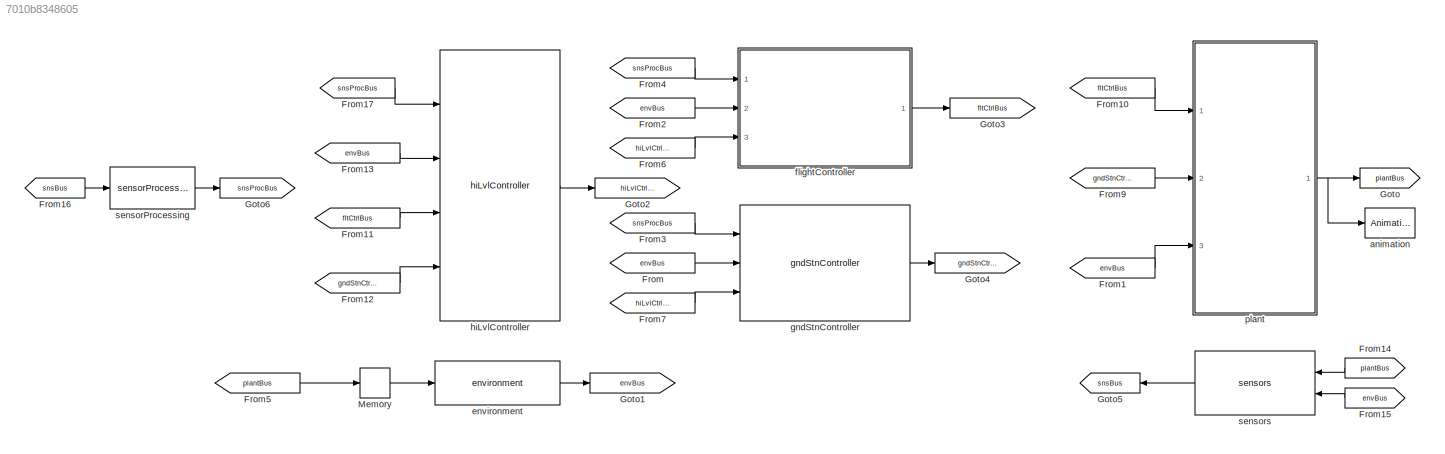
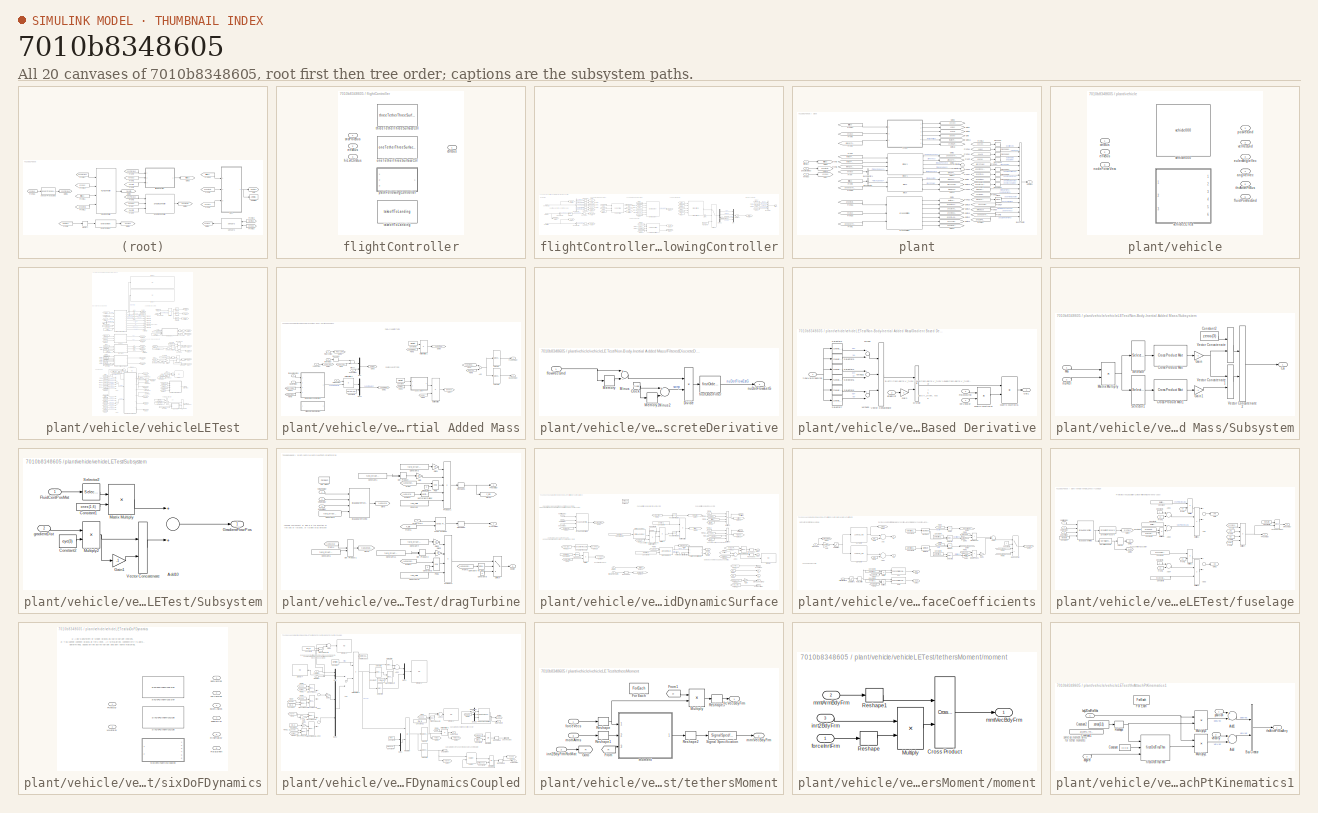
[diagram: thumbnail index - all 20 canvases of the model, root first then tree order]
MODEL slx_7010b8348605
KIND model
CONFIG AbsTol = auto
CONFIG EnableMultiTasking = off
CONFIG FixedStep = auto
CONFIG MaxStep = auto
CONFIG MinStep = auto
CONFIG RelTol = 1e-3
CONFIG SampleTimeConstraint = Unconstrained
CONFIG Solver = ode15s
CONFIG SolverName = ode15s
CONFIG StartTime = 0.0
CONFIG StopTime = duration_s
BLOCK [From] From
  GotoTag = envBus
BLOCK [From] From1
  GotoTag = envBus
BLOCK [From] From10
  GotoTag = fltCtrlBus
BLOCK [From] From11
  GotoTag = fltCtrlBus
BLOCK [From] From12
  GotoTag = gndStnCtrlBus
BLOCK [From] From13
  GotoTag = envBus
BLOCK [From] From14
  GotoTag = plantBus
BLOCK [From] From15
  GotoTag = envBus
BLOCK [From] From16
  GotoTag = snsBus
BLOCK [From] From17
  GotoTag = snsProcBus
BLOCK [From] From2
  GotoTag = envBus
BLOCK [From] From3
  GotoTag = snsProcBus
BLOCK [From] From4
  GotoTag = snsProcBus
BLOCK [From] From5
  GotoTag = plantBus
BLOCK [From] From6
  GotoTag = hiLvlCtrlBus
BLOCK [From] From7
  GotoTag = hiLvlCtrlBus
BLOCK [From] From9
  GotoTag = gndStnCtrlBus
BLOCK [Goto] Goto
  GotoTag = plantBus
BLOCK [Goto] Goto1
  GotoTag = envBus
BLOCK [Goto] Goto2
  GotoTag = hiLvlCtrlBus
BLOCK [Goto] Goto3
  GotoTag = fltCtrlBus
BLOCK [Goto] Goto4
  GotoTag = gndStnCtrlBus
BLOCK [Goto] Goto5
  GotoTag = snsBus
BLOCK [Goto] Goto6
  GotoTag = snsProcBus
BLOCK [Memory] Memory
BLOCK [Reference] animation  REF=animation_cl/Animation
  Commented = on
  Ports = [1]
  SourceBlock = animation_cl/Animation
BLOCK [Reference] environment  REF=environment_cl/environment  (lib defined in slx_47dae840ee41)
  Ports = [1, 1]
  SourceBlock = environment_cl/environment
  SourceType = SubSystem
BLOCK [SubSystem] flightController
  AncestorBlock = flightController_cl/flightController
  InitFcn = initializeVariantsFromBlock(gcb)
  LoadFcn = initializeVariantsFromBlock(gcb)
  Ports = [3, 1]
  PreSaveFcn = initializeVariantsFromBlock(gcb)
  RequestExecContextInheritance = off
  StartFcn = initializeVariantsFromBlock(gcb)
  Variant = on
BLOCK [Outport] flightController/ctrlBus
  IconDisplay = Port number
  OutDataTypeStr = Bus: fltCtrlBus
BLOCK [Inport] flightController/envBus
  IconDisplay = Port number
  OutDataTypeStr = Bus: envBus
  Port = 2
BLOCK [Inport] flightController/hiLvlCtrlBus
  IconDisplay = Port number
  OutDataTypeStr = Bus: hiLvlCtrlBus
  Port = 3
BLOCK [Reference] flightController/oneTetherThreeSurfaceCtrl  REF=oneTetherThreeSurfaceCtrl_cl/oneTetherThreeSurfaceCtrl
  Ports = [3, 1]
  SourceBlock = oneTetherThreeSurfaceCtrl_cl/oneTetherThreeSurfaceCtrl
  SourceType = SubSystem
BLOCK [SubSystem] flightController/pathFollowingController
  AncestorBlock = pathFollowingController_cl/pathFollowingController
  InitFcn = initializeBussesFromBlock(gcb)
  LoadFcn = initializeBussesFromBlock(gcb)
  MinAlgLoopOccurrences = on
  Ports = [3, 1]
  RequestExecContextInheritance = off
  StartFcn = initializeBussesFromBlock(gcb)
  VariantControl = strcmpi(FLIGHTCONTROLLER,'pathFollowingController')
BLOCK [BusCreator] flightController/pathFollowingController/Bus Creator
  DisplayOption = bar
  InheritFromInputs = off
  Inputs = 4
  OutDataTypeStr = Bus: fltCtrlBus
  Ports = [4, 1]
BLOCK [BusSelector] flightController/pathFollowingController/Bus Selector
  OutputAsBus = off
  OutputSignals = positionVec,velocityVec,eulerAngles,angularVel,gndStnPositionVec
  Ports = [1, 5]
BLOCK [BusSelector] flightController/pathFollowingController/Bus Selector1
  OutputAsBus = off
  OutputSignals = vhclFlowVecs
  Ports = [1, 1]
BLOCK [BusSelector] flightController/pathFollowingController/Bus Selector2
  OutputAsBus = off
  OutputSignals = basisParams
  Ports = [1, 1]
BLOCK [Clock] flightController/pathFollowingController/Clock
BLOCK [Constant] flightController/pathFollowingController/Constant6
  Value = [0 0 0 0]'
BLOCK [Demux] flightController/pathFollowingController/Demux1
  DisplayOption = bar
  Ports = [1, 4]
BLOCK [From] flightController/pathFollowingController/From
  GotoTag = flowVecGnd
BLOCK [From] flightController/pathFollowingController/From1
  GotoTag = pos
BLOCK [From] flightController/pathFollowingController/From10
  GotoTag = sStar
BLOCK [From] flightController/pathFollowingController/From11
  GotoTag = elevCmd
BLOCK [From] flightController/pathFollowingController/From12
  GotoTag = flowVecGnd
BLOCK [From] flightController/pathFollowingController/From13
  GotoTag = plantBus
BLOCK [From] flightController/pathFollowingController/From14
  GotoTag = velGnd
BLOCK [From] flightController/pathFollowingController/From15
  GotoTag = hiLvlCtrlBus
BLOCK [From] flightController/pathFollowingController/From16
  GotoTag = envBus
BLOCK [From] flightController/pathFollowingController/From17
  GotoTag = ctrlSurDefl
BLOCK [From] flightController/pathFollowingController/From18
  GotoTag = MDesBdy
BLOCK [From] flightController/pathFollowingController/From19
  GotoTag = pathCntr
BLOCK [From] flightController/pathFollowingController/From2
  GotoTag = velGnd
BLOCK [From] flightController/pathFollowingController/From20
  GotoTag = sStar
BLOCK [From] flightController/pathFollowingController/From21
  GotoTag = pathCntr
BLOCK [From] flightController/pathFollowingController/From24
  GotoTag = eul
BLOCK [From] flightController/pathFollowingController/From3
  GotoTag = eul
BLOCK [From] flightController/pathFollowingController/From4
  GotoTag = pos
BLOCK [From] flightController/pathFollowingController/From5
  GotoTag = velVecDesGnd
BLOCK [From] flightController/pathFollowingController/From6
  GotoTag = basisParams
BLOCK [From] flightController/pathFollowingController/From7
  GotoTag = angVel
BLOCK [From] flightController/pathFollowingController/From8
  GotoTag = winchCmd
BLOCK [From] flightController/pathFollowingController/From9
  GotoTag = centralAngle
BLOCK [Goto] flightController/pathFollowingController/Goto
  GotoTag = flowVecGnd
BLOCK [Goto] flightController/pathFollowingController/Goto1
  GotoTag = pos
BLOCK [Goto] flightController/pathFollowingController/Goto10
  GotoTag = hiLvlCtrlBus
BLOCK [Goto] flightController/pathFollowingController/Goto11
  GotoTag = elevCmd
BLOCK [Goto] flightController/pathFollowingController/Goto12
  GotoTag = winchCmd
BLOCK [Goto] flightController/pathFollowingController/Goto13
  GotoTag = MDesBdy
BLOCK [Goto] flightController/pathFollowingController/Goto14
  GotoTag = ctrlSurDefl
BLOCK [Goto] flightController/pathFollowingController/Goto15
  GotoTag = envBus
BLOCK [Goto] flightController/pathFollowingController/Goto16
  GotoTag = pathCntr
BLOCK [Goto] flightController/pathFollowingController/Goto2
  GotoTag = velGnd
BLOCK [Goto] flightController/pathFollowingController/Goto3
  GotoTag = eul
BLOCK [Goto] flightController/pathFollowingController/Goto4
  GotoTag = sStar
BLOCK [Goto] flightController/pathFollowingController/Goto5
  GotoTag = centralAngle
BLOCK [Goto] flightController/pathFollowingController/Goto6
  GotoTag = angVel
BLOCK [Goto] flightController/pathFollowingController/Goto7
  GotoTag = velVecDesGnd
BLOCK [Goto] flightController/pathFollowingController/Goto8
  GotoTag = basisParams
BLOCK [Goto] flightController/pathFollowingController/Goto9
  GotoTag = plantBus
BLOCK [Mux] flightController/pathFollowingController/Mux
  DisplayOption = bar
  Ports = [4, 1]
BLOCK [Reshape] flightController/pathFollowingController/Reshape1
  OutputDimensionality = Column vector (2-D)
  Ports = [1, 1]
BLOCK [Reshape] flightController/pathFollowingController/Reshape2
  OutputDimensionality = Column vector (2-D)
  Ports = [1, 1]
BLOCK [Reshape] flightController/pathFollowingController/Reshape5
  OutputDimensionality = Column vector (2-D)
  Ports = [1, 1]
BLOCK [Reshape] flightController/pathFollowingController/Reshape6
  OutputDimensionality = Column vector (2-D)
  Ports = [1, 1]
BLOCK [Reshape] flightController/pathFollowingController/Reshape7
  OutputDimensionality = Column vector (2-D)
  Ports = [1, 1]
BLOCK [Reshape] flightController/pathFollowingController/Reshape8
  OutputDimensionality = Column vector (2-D)
  Ports = [1, 1]
BLOCK [Reshape] flightController/pathFollowingController/Reshape9
  OutputDimensionality = Column vector (2-D)
  Ports = [1, 1]
BLOCK [Saturate] flightController/pathFollowingController/Saturation2
  InputPortMap = u0
  LowerLimit = pathCtrl.controlSigMax.lowerLimit.Value
  Ports = [1, 1]
  UpperLimit = pathCtrl.controlSigMax.upperLimit.Value
BLOCK [Selector] flightController/pathFollowingController/Selector
  IndexOptions = Select all,Index vector (dialog)
  Indices = [1 3],5
  InputPortWidth = 3
  NumberOfDimensions = 2
  OutputSizes = 1,1
  Ports = [1, 1]
BLOCK [Switch] flightController/pathFollowingController/Switch2
  Criteria = u2 > Threshold
  InputSameDT = off
  SaturateOnIntegerOverflow = off
  Threshold = pathCtrl.startControl.Value
BLOCK [Terminator] flightController/pathFollowingController/Terminator3
BLOCK [Reference] flightController/pathFollowingController/courseFollow  REF=courseFollow_cl/courseFollow
  Ports = [3, 3]
  SourceBlock = courseFollow_cl/courseFollow
  SourceType = SubSystem
BLOCK [Reference] flightController/pathFollowingController/ctrlAllocMatrixLE  REF=ctrlAllocMatrixLE_cl/ctrlAllocMatrixLE
  Ports = [5, 1]
  SourceBlock = ctrlAllocMatrixLE_cl/ctrlAllocMatrixLE
BLOCK [Outport] flightController/pathFollowingController/ctrlBus
  IconDisplay = Port number
  OutDataTypeStr = Bus: fltCtrlBus
BLOCK [Reference] flightController/pathFollowingController/desiredMoment  REF=setpointToOutput_cl/desiredMoment
  Ports = [6, 1]
  SourceBlock = setpointToOutput_cl/desiredMoment
  SourceType = SubSystem
BLOCK [Inport] flightController/pathFollowingController/envBus
  IconDisplay = Port number
  OutDataTypeStr = Bus: envBus
  Port = 3
BLOCK [Inport] flightController/pathFollowingController/hiLvlCtrlBus
  IconDisplay = Port number
  OutDataTypeStr = Bus: hiLvlCtrlBus
  Port = 2
BLOCK [Inport] flightController/pathFollowingController/snsProcBus
  IconDisplay = Port number
  OutDataTypeStr = Bus: sensorsProcessingBus
BLOCK [Reference] flightController/pathFollowingController/spoolingController  REF=spoolingController_cl/spoolingController
  Ports = [4, 2]
  SourceBlock = spoolingController_cl/spoolingController
  SourceType = SubSystem
BLOCK [Inport] flightController/snsProcBus
  IconDisplay = Port number
  OutDataTypeStr = Bus: sensorsProcessingBus
BLOCK [Reference] flightController/takeoffToLanding  REF=takeoffToLanding_cl/takeoffToLanding
  Ports = [3, 1]
  SourceBlock = takeoffToLanding_cl/takeoffToLanding
BLOCK [Reference] flightController/threeTetherThreeSurfaceCtrl  REF=threeTetherThreeSurfaceCtrl_cl/threeTetherThreeSurfaceCtrl
  Ports = [3, 1]
  SourceBlock = threeTetherThreeSurfaceCtrl_cl/threeTetherThreeSurfaceCtrl
BLOCK [Reference] gndStnController  REF=gndStnController_cl/gndStnController
  Ports = [3, 1]
  SourceBlock = gndStnController_cl/gndStnController
  SourceType = SubSystem
BLOCK [Reference] hiLvlController  REF=hiLvlController_cl/hiLvlController
  Ports = [4, 1]
  SourceBlock = hiLvlController_cl/hiLvlController
  SourceType = SubSystem
BLOCK [SubSystem] plant
  AncestorBlock = plant_cl/plant
  InitFcn = initializeBussesFromBlock(gcb)
  LoadFcn = initializeBussesFromBlock(gcb)
  Ports = [3, 1]
  RequestExecContextInheritance = off
  StartFcn = initializeBussesFromBlock(gcb)
  VariantControl = VSS_plant_modularPlant
BLOCK [BusCreator] plant/Bus Creator
  DisplayOption = bar
  InheritFromInputs = on
  Inputs = 16
  NonVirtualBus = on
  OutDataTypeStr = Bus: plantBus
  Ports = [16, 1]
BLOCK [BusSelector] plant/Bus Selector
  OutputAsBus = off
  OutputSignals = winchSpeeds
  Ports = [1, 1]
BLOCK [BusSelector] plant/Bus Selector1
  OutputAsBus = off
  OutputSignals = thrLinkFlowVecs
  Ports = [1, 1]
BLOCK [From] plant/From
  GotoTag = envBus
BLOCK [From] plant/From1
  GotoTag = gndNodeTenVecs
BLOCK [From] plant/From10
  GotoTag = winchPower
BLOCK [From] plant/From11
  GotoTag = eulAng
BLOCK [From] plant/From12
  GotoTag = posVec
BLOCK [From] plant/From13
  GotoTag = gndStnEulAng
BLOCK [From] plant/From14
  GotoTag = velVec
BLOCK [From] plant/From15
  GotoTag = gndStnCtrlBus
BLOCK [From] plant/From16
  GotoTag = gndStnPosVec
BLOCK [From] plant/From17
  GotoTag = gndStnVelVec
BLOCK [From] plant/From18
  GotoTag = envBus
BLOCK [From] plant/From19
  GotoTag = thrFlowPollPos
BLOCK [From] plant/From2
  GotoTag = airNodeTenVecs
BLOCK [From] plant/From20
  GotoTag = gndStnAngVel
BLOCK [From] plant/From21
  GotoTag = fltCtrlBus
BLOCK [From] plant/From22
  GotoTag = vhclFlowPollPos
BLOCK [From] plant/From23
  GotoTag = tetherLengths
BLOCK [From] plant/From24
  GotoTag = anchThrFlowPollPositions
BLOCK [From] plant/From25
  GotoTag = thrRelease
BLOCK [From] plant/From27
  GotoTag = gndStnFlowPollPos
BLOCK [From] plant/From28
  GotoTag = gndNodeTenVecs
BLOCK [From] plant/From3
  GotoTag = thrAttchPtAirBus
BLOCK [From] plant/From4
  GotoTag = thrAttchPtGndBus
BLOCK [From] plant/From5
  GotoTag = envBus
BLOCK [From] plant/From6
  GotoTag = tetherLengths
BLOCK [From] plant/From7
  GotoTag = angVel
BLOCK [From] plant/From8
  GotoTag = gndNodeTenVecs
BLOCK [From] plant/From9
  GotoTag = fltCtrlBus
BLOCK [Goto] plant/Goto
  GotoTag = angVel
BLOCK [Goto] plant/Goto1
  GotoTag = thrAttchPtGndBus
BLOCK [Goto] plant/Goto10
  GotoTag = winchPower
BLOCK [Goto] plant/Goto11
  GotoTag = thrAttchPtAirBus
BLOCK [Goto] plant/Goto12
  GotoTag = gndStnAngVel
BLOCK [Goto] plant/Goto13
  GotoTag = gndStnEulAng
BLOCK [Goto] plant/Goto14
  GotoTag = gndStnVelVec
BLOCK [Goto] plant/Goto15
  GotoTag = gndStnPosVec
BLOCK [Goto] plant/Goto16
  GotoTag = gndStnCtrlBus
BLOCK [Goto] plant/Goto17
  GotoTag = thrFlowPollPos
BLOCK [Goto] plant/Goto18
  GotoTag = vhclFlowPollPos
BLOCK [Goto] plant/Goto19
  GotoTag = anchThrFlowPollPositions
BLOCK [Goto] plant/Goto2
  GotoTag = gndNodeTenVecs
BLOCK [Goto] plant/Goto20
  GotoTag = thrRelease
BLOCK [Goto] plant/Goto21
  GotoTag = gndStnFlowPollPos
BLOCK [Goto] plant/Goto3
  GotoTag = posVec
BLOCK [Goto] plant/Goto4
  GotoTag = velVec
BLOCK [Goto] plant/Goto5
  GotoTag = airNodeTenVecs
BLOCK [Goto] plant/Goto6
  GotoTag = tetherLengths
BLOCK [Goto] plant/Goto7
  GotoTag = envBus
BLOCK [Goto] plant/Goto8
  GotoTag = eulAng
BLOCK [Goto] plant/Goto9
  GotoTag = fltCtrlBus
BLOCK [Reference] plant/Mean  REF=dspstat3/Mean
  Ports = [1, 1]
  SourceBlock = dspstat3/Mean
  SourceProductBaseCode = DS
  SourceProductName = DSP System Toolbox
  SourceType = Mean
  UserDataPersistent = on
BLOCK [Reshape] plant/Reshape
  OutputDimensionality = Column vector (2-D)
  Ports = [1, 1]
BLOCK [Reshape] plant/Reshape1
  OutputDimensionality = Column vector (2-D)
  Ports = [1, 1]
BLOCK [Reshape] plant/Reshape2
  OutputDimensionality = Column vector (2-D)
  Ports = [1, 1]
BLOCK [Reshape] plant/Reshape3
  OutputDimensionality = Column vector (2-D)
  Ports = [1, 1]
BLOCK [Reshape] plant/Reshape4
  OutputDimensionality = Column vector (2-D)
  Ports = [1, 1]
BLOCK [Reshape] plant/Reshape5
  OutputDimensionality = Column vector (2-D)
  Ports = [1, 1]
BLOCK [Reshape] plant/Reshape6
  OutputDimensionality = Column vector (2-D)
  Ports = [1, 1]
BLOCK [Reshape] plant/Reshape7
  OutputDimensionality = Column vector (2-D)
  Ports = [1, 1]
BLOCK [Terminator] plant/Terminator
BLOCK [Terminator] plant/Terminator1
BLOCK [Inport] plant/envBus
  IconDisplay = Port number
  OutDataTypeStr = Bus: envBus
  Port = 3
BLOCK [Inport] plant/fltCtrlBus
  IconDisplay = Port number
  OutDataTypeStr = Bus: fltCtrlBus
BLOCK [Inport] plant/gndStnCtrlBus
  IconDisplay = Port number
  OutDataTypeStr = Bus: gndStnCtrlBus
  Port = 2
BLOCK [Reference] plant/groundStation  REF=groundStation_cl/groundStation
  Ports = [3, 7]
  SourceBlock = groundStation_cl/groundStation
BLOCK [Outport] plant/plantBus
  IconDisplay = Port number
  OutDataTypeStr = Bus: plantBus
BLOCK [Reference] plant/tethers  REF=tethers_cl/tethers
  Ports = [4, 5]
  SourceBlock = tethers_cl/tethers
  SourceType = SubSystem
BLOCK [SubSystem] plant/vehicle
  AncestorBlock = vehicle_cl/vehicle
  InitFcn = initializeVariantsFromBlock(gcb)
  LoadFcn = initializeVariantsFromBlock(gcb)
  Ports = [3, 6]
  PreSaveFcn = initializeVariantsFromBlock(gcb)
  RequestExecContextInheritance = off
  StartFcn = initializeVariantsFromBlock(gcb)
  Variant = on
BLOCK [Outport] plant/vehicle/angVelVec
  IconDisplay = Port number
  Port = 4
BLOCK [Inport] plant/vehicle/ctrlBus
  IconDisplay = Port number
  OutDataTypeStr = Bus: fltCtrlBus
BLOCK [Inport] plant/vehicle/envBus
  IconDisplay = Port number
  OutDataTypeStr = Bus: envBus
  Port = 2
BLOCK [Outport] plant/vehicle/eulerAngleVec
  IconDisplay = Port number
  Port = 3
BLOCK [Outport] plant/vehicle/fluidPosVecGnd
  IconDisplay = Port number
  Port = 6
BLOCK [Inport] plant/vehicle/nodeForceVecs
  IconDisplay = Port number
  Port = 3
BLOCK [Outport] plant/vehicle/posVecGnd
  IconDisplay = Port number
BLOCK [Outport] plant/vehicle/thrAttchPtBus
  IconDisplay = Port number
  Port = 5
BLOCK [Reference] plant/vehicle/vehicle000  REF=vehicle000_cl/vehicle000  (lib defined in slx_ded455483655)
  Ports = [3, 6]
  SourceBlock = vehicle000_cl/vehicle000
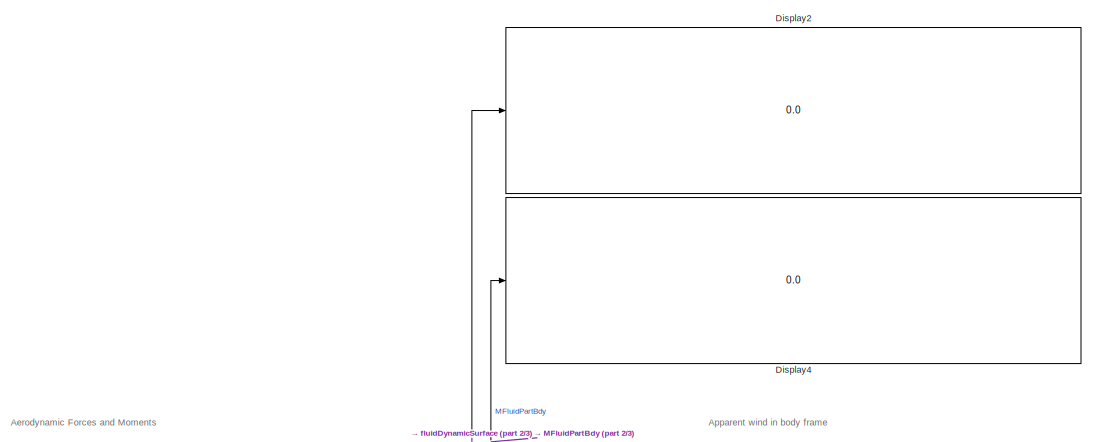
[diagram: plant/vehicle/vehicleLETest - part 1/3, full width, top band]
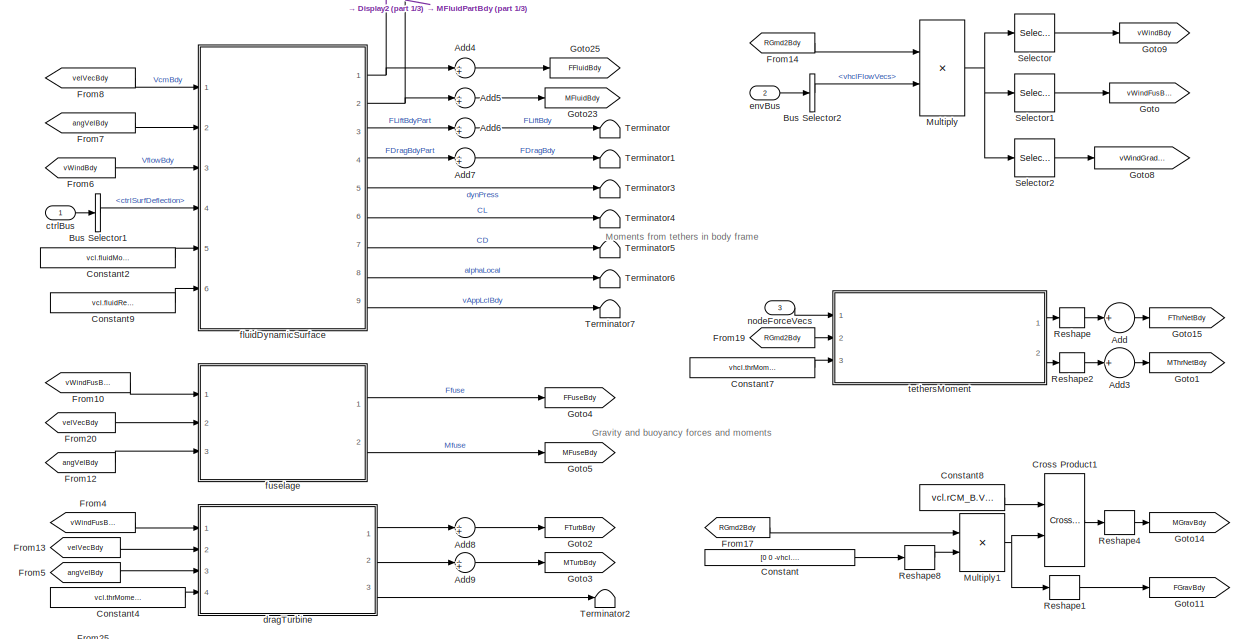
[diagram: plant/vehicle/vehicleLETest - part 2/3, full width, middle band]
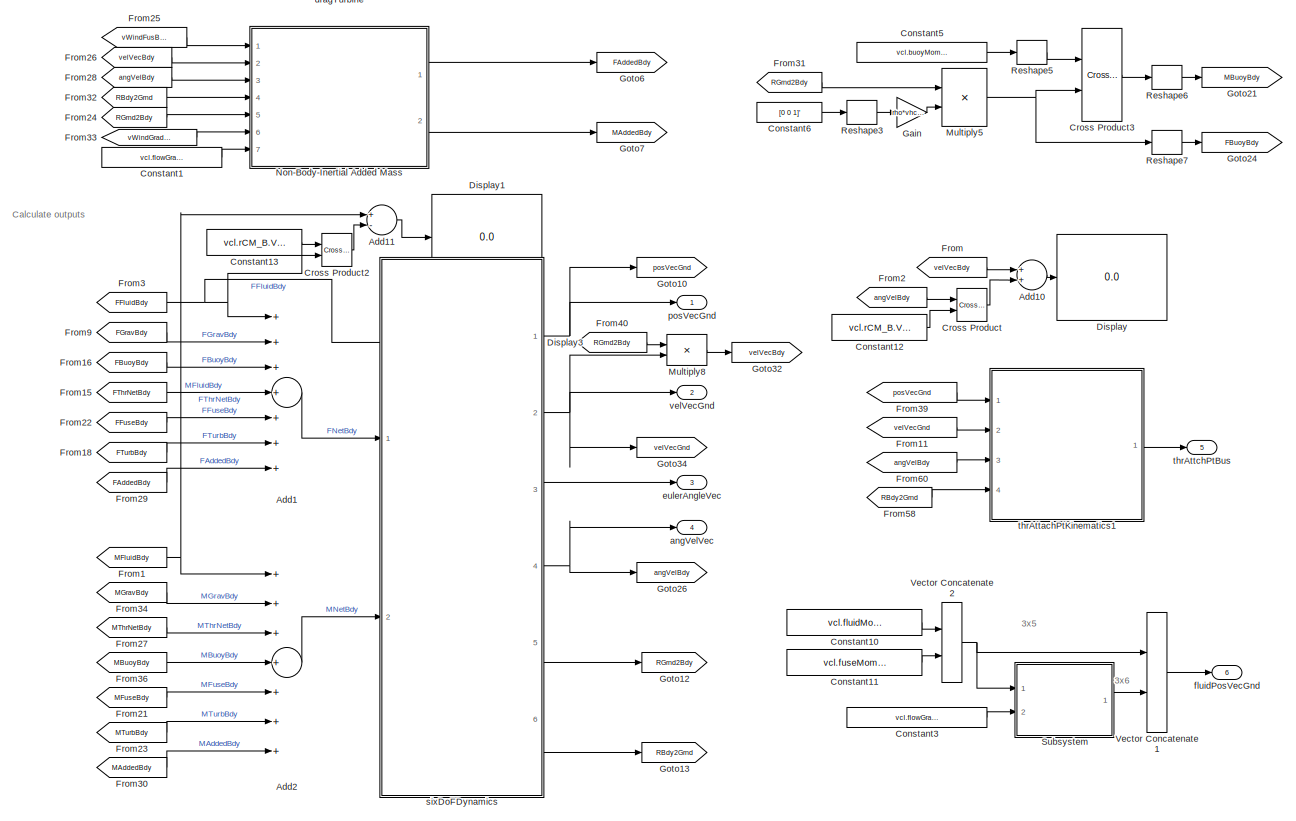
[diagram: plant/vehicle/vehicleLETest - part 3/3, full width, bottom band]
BLOCK [SubSystem] plant/vehicle/vehicleLETest
  AncestorBlock = vehicleLE_cl/vehicleLE
  Ports = [3, 6]
  RequestExecContextInheritance = off
  VariantControl = VSS_vehicle_vehicleLETest
BLOCK [Sum] plant/vehicle/vehicleLETest/Add
  CollapseDim = 2
  CollapseMode = Specified dimension
  InputSameDT = off
  Inputs = +
  OutDataTypeStr = Inherit: Inherit via internal rule
  Ports = [1, 1]
  SaturateOnIntegerOverflow = off
BLOCK [Sum] plant/vehicle/vehicleLETest/Add1
  InputSameDT = off
  Inputs = +++++++
  OutDataTypeStr = Inherit: Inherit via internal rule
  Ports = [7, 1]
  SaturateOnIntegerOverflow = off
BLOCK [Sum] plant/vehicle/vehicleLETest/Add10
  InputSameDT = off
  OutDataTypeStr = Inherit: Inherit via internal rule
  Ports = [2, 1]
  SaturateOnIntegerOverflow = off
BLOCK [Sum] plant/vehicle/vehicleLETest/Add11
  InputSameDT = off
  Inputs = +-
  OutDataTypeStr = Inherit: Inherit via internal rule
  Ports = [2, 1]
  SaturateOnIntegerOverflow = off
BLOCK [Sum] plant/vehicle/vehicleLETest/Add2
  InputSameDT = off
  Inputs = +++++++
  OutDataTypeStr = Inherit: Inherit via internal rule
  Ports = [7, 1]
  SaturateOnIntegerOverflow = off
BLOCK [Sum] plant/vehicle/vehicleLETest/Add3
  CollapseDim = 2
  CollapseMode = Specified dimension
  InputSameDT = off
  Inputs = +
  OutDataTypeStr = Inherit: Inherit via internal rule
  Ports = [1, 1]
  SaturateOnIntegerOverflow = off
BLOCK [Sum] plant/vehicle/vehicleLETest/Add4
  CollapseDim = 2
  CollapseMode = Specified dimension
  InputSameDT = off
  Inputs = 1
  OutDataTypeStr = Inherit: Inherit via internal rule
  Ports = [1, 1]
  SaturateOnIntegerOverflow = off
BLOCK [Sum] plant/vehicle/vehicleLETest/Add5
  CollapseDim = 2
  CollapseMode = Specified dimension
  InputSameDT = off
  Inputs = 1
  OutDataTypeStr = Inherit: Inherit via internal rule
  Ports = [1, 1]
  SaturateOnIntegerOverflow = off
BLOCK [Sum] plant/vehicle/vehicleLETest/Add6
  CollapseDim = 2
  CollapseMode = Specified dimension
  InputSameDT = off
  Inputs = 1
  OutDataTypeStr = Inherit: Inherit via internal rule
  Ports = [1, 1]
  SaturateOnIntegerOverflow = off
BLOCK [Sum] plant/vehicle/vehicleLETest/Add7
  CollapseDim = 2
  CollapseMode = Specified dimension
  InputSameDT = off
  Inputs = 1
  OutDataTypeStr = Inherit: Inherit via internal rule
  Ports = [1, 1]
  SaturateOnIntegerOverflow = off
BLOCK [Sum] plant/vehicle/vehicleLETest/Add8
  CollapseDim = 2
  CollapseMode = Specified dimension
  InputSameDT = off
  Inputs = 1
  OutDataTypeStr = Inherit: Inherit via internal rule
  Ports = [1, 1]
  SaturateOnIntegerOverflow = off
BLOCK [Sum] plant/vehicle/vehicleLETest/Add9
  CollapseDim = 2
  CollapseMode = Specified dimension
  InputSameDT = off
  Inputs = 1
  OutDataTypeStr = Inherit: Inherit via internal rule
  Ports = [1, 1]
  SaturateOnIntegerOverflow = off
BLOCK [BusSelector] plant/vehicle/vehicleLETest/Bus Selector1
  OutputAsBus = off
  OutputSignals = ctrlSurfDeflection
  Ports = [1, 1]
BLOCK [BusSelector] plant/vehicle/vehicleLETest/Bus Selector2
  OutputAsBus = off
  OutputSignals = vhclFlowVecs
  Ports = [1, 1]
BLOCK [Constant] plant/vehicle/vehicleLETest/Constant
  Value = [0 0 -vhcl.mass.Value*grav]
BLOCK [Constant] plant/vehicle/vehicleLETest/Constant1
  Value = vcl.flowGradientDist.Value
BLOCK [Constant] plant/vehicle/vehicleLETest/Constant10
  Value = vcl.fluidMomentArms.Value
BLOCK [Constant] plant/vehicle/vehicleLETest/Constant11
  Value = vcl.fuseMomentArm.Value
BLOCK [Constant] plant/vehicle/vehicleLETest/Constant12
  Value = vcl.rCM_B.Value
BLOCK [Constant] plant/vehicle/vehicleLETest/Constant13
  Value = vcl.rCM_B.Value
BLOCK [Constant] plant/vehicle/vehicleLETest/Constant2
  Value = vcl.fluidMomentArms.Value
BLOCK [Constant] plant/vehicle/vehicleLETest/Constant3
  Value = vcl.flowGradientDist.Value
BLOCK [Constant] plant/vehicle/vehicleLETest/Constant4
  Value = vcl.thrMomentArms.Value
  VectorParams1D = off
BLOCK [Constant] plant/vehicle/vehicleLETest/Constant5
  Value = vcl.buoyMomentArm.Value
BLOCK [Constant] plant/vehicle/vehicleLETest/Constant6
  Value = [0 0 1]'
BLOCK [Constant] plant/vehicle/vehicleLETest/Constant7
  Value = vhcl.thrMomentArms.Value
BLOCK [Constant] plant/vehicle/vehicleLETest/Constant8
  Value = vcl.rCM_B.Value
BLOCK [Constant] plant/vehicle/vehicleLETest/Constant9
  Value = vcl.fluidRefArea.Value
BLOCK [Reference] plant/vehicle/vehicleLETest/Cross Product  REF=vrlib/Utilities/Cross Product
  Ports = [2, 1]
  SourceBlock = vrlib/Utilities/Cross Product
  SourceProductBaseCode = VR
  SourceProductName = Simulink 3D Animation
  SourceType = Cross Product
BLOCK [Reference] plant/vehicle/vehicleLETest/Cross Product1  REF=vrlib/Utilities/Cross Product
  Ports = [2, 1]
  SourceBlock = vrlib/Utilities/Cross Product
  SourceProductBaseCode = VR
  SourceProductName = Simulink 3D Animation
  SourceType = Cross Product
BLOCK [Reference] plant/vehicle/vehicleLETest/Cross Product2  REF=vrlib/Utilities/Cross Product
  Ports = [2, 1]
  SourceBlock = vrlib/Utilities/Cross Product
  SourceProductBaseCode = VR
  SourceProductName = Simulink 3D Animation
  SourceType = Cross Product
BLOCK [Reference] plant/vehicle/vehicleLETest/Cross Product3  REF=vrlib/Utilities/Cross Product
  Ports = [2, 1]
  SourceBlock = vrlib/Utilities/Cross Product
  SourceProductBaseCode = VR
  SourceProductName = Simulink 3D Animation
  SourceType = Cross Product
BLOCK [Display] plant/vehicle/vehicleLETest/Display
  Decimation = 1
  Ports = [1]
BLOCK [Display] plant/vehicle/vehicleLETest/Display1
  Decimation = 1
  Format = long
  Ports = [1]
BLOCK [Display] plant/vehicle/vehicleLETest/Display2
  Decimation = 1
  Format = long
  Ports = [1]
BLOCK [Display] plant/vehicle/vehicleLETest/Display3
  Decimation = 1
  Format = long
  Ports = [1]
BLOCK [Display] plant/vehicle/vehicleLETest/Display4
  Decimation = 1
  Format = long
  Ports = [1]
BLOCK [From] plant/vehicle/vehicleLETest/From
  GotoTag = velVecBdy
BLOCK [From] plant/vehicle/vehicleLETest/From1
  GotoTag = MFluidBdy
BLOCK [From] plant/vehicle/vehicleLETest/From10
  GotoTag = vWindFusBdy
BLOCK [From] plant/vehicle/vehicleLETest/From11
  GotoTag = velVecGnd
BLOCK [From] plant/vehicle/vehicleLETest/From12
  GotoTag = angVelBdy
BLOCK [From] plant/vehicle/vehicleLETest/From13
  GotoTag = velVecBdy
BLOCK [From] plant/vehicle/vehicleLETest/From14
  GotoTag = RGrnd2Bdy
BLOCK [From] plant/vehicle/vehicleLETest/From15
  GotoTag = FThrNetBdy
BLOCK [From] plant/vehicle/vehicleLETest/From16
  GotoTag = FBuoyBdy
BLOCK [From] plant/vehicle/vehicleLETest/From17
  GotoTag = RGrnd2Bdy
BLOCK [From] plant/vehicle/vehicleLETest/From18
  GotoTag = FTurbBdy
BLOCK [From] plant/vehicle/vehicleLETest/From19
  GotoTag = RGrnd2Bdy
BLOCK [From] plant/vehicle/vehicleLETest/From2
  GotoTag = angVelBdy
BLOCK [From] plant/vehicle/vehicleLETest/From20
  GotoTag = velVecBdy
BLOCK [From] plant/vehicle/vehicleLETest/From21
  GotoTag = MFuseBdy
BLOCK [From] plant/vehicle/vehicleLETest/From22
  GotoTag = FFuseBdy
BLOCK [From] plant/vehicle/vehicleLETest/From23
  GotoTag = MTurbBdy
BLOCK [From] plant/vehicle/vehicleLETest/From24
  GotoTag = RGrnd2Bdy
BLOCK [From] plant/vehicle/vehicleLETest/From25
  GotoTag = vWindFusBdy
BLOCK [From] plant/vehicle/vehicleLETest/From26
  GotoTag = velVecBdy
BLOCK [From] plant/vehicle/vehicleLETest/From27
  GotoTag = MThrNetBdy
BLOCK [From] plant/vehicle/vehicleLETest/From28
  GotoTag = angVelBdy
BLOCK [From] plant/vehicle/vehicleLETest/From29
  GotoTag = FAddedBdy
BLOCK [From] plant/vehicle/vehicleLETest/From3
  GotoTag = FFluidBdy
BLOCK [From] plant/vehicle/vehicleLETest/From30
  GotoTag = MAddedBdy
BLOCK [From] plant/vehicle/vehicleLETest/From31
  GotoTag = RGrnd2Bdy
BLOCK [From] plant/vehicle/vehicleLETest/From32
  GotoTag = RBdy2Grnd
BLOCK [From] plant/vehicle/vehicleLETest/From33
  GotoTag = vWindGradGrnd
BLOCK [From] plant/vehicle/vehicleLETest/From34
  GotoTag = MGravBdy
BLOCK [From] plant/vehicle/vehicleLETest/From36
  GotoTag = MBuoyBdy
BLOCK [From] plant/vehicle/vehicleLETest/From39
  GotoTag = posVecGnd
BLOCK [From] plant/vehicle/vehicleLETest/From4
  GotoTag = vWindFusBdy
BLOCK [From] plant/vehicle/vehicleLETest/From40
  GotoTag = RGrnd2Bdy
BLOCK [From] plant/vehicle/vehicleLETest/From5
  GotoTag = angVelBdy
BLOCK [From] plant/vehicle/vehicleLETest/From58
  GotoTag = RBdy2Grnd
BLOCK [From] plant/vehicle/vehicleLETest/From6
  GotoTag = vWindBdy
BLOCK [From] plant/vehicle/vehicleLETest/From60
  GotoTag = angVelBdy
BLOCK [From] plant/vehicle/vehicleLETest/From7
  GotoTag = angVelBdy
BLOCK [From] plant/vehicle/vehicleLETest/From8
  GotoTag = velVecBdy
BLOCK [From] plant/vehicle/vehicleLETest/From9
  GotoTag = FGravBdy
BLOCK [Gain] plant/vehicle/vehicleLETest/Gain
  Gain = rho*vhcl.volume.Value*grav
  OutDataTypeStr = Inherit: Inherit via internal rule
  ParamDataTypeStr = Inherit: Inherit via internal rule
  SaturateOnIntegerOverflow = off
BLOCK [Goto] plant/vehicle/vehicleLETest/Goto
  GotoTag = vWindFusBdy
BLOCK [Goto] plant/vehicle/vehicleLETest/Goto1
  GotoTag = MThrNetBdy
BLOCK [Goto] plant/vehicle/vehicleLETest/Goto10
  GotoTag = posVecGnd
BLOCK [Goto] plant/vehicle/vehicleLETest/Goto11
  GotoTag = FGravBdy
BLOCK [Goto] plant/vehicle/vehicleLETest/Goto12
  GotoTag = RGrnd2Bdy
BLOCK [Goto] plant/vehicle/vehicleLETest/Goto13
  GotoTag = RBdy2Grnd
BLOCK [Goto] plant/vehicle/vehicleLETest/Goto14
  GotoTag = MGravBdy
BLOCK [Goto] plant/vehicle/vehicleLETest/Goto15
  GotoTag = FThrNetBdy
BLOCK [Goto] plant/vehicle/vehicleLETest/Goto2
  GotoTag = FTurbBdy
BLOCK [Goto] plant/vehicle/vehicleLETest/Goto21
  GotoTag = MBuoyBdy
BLOCK [Goto] plant/vehicle/vehicleLETest/Goto23
  GotoTag = MFluidBdy
BLOCK [Goto] plant/vehicle/vehicleLETest/Goto24
  GotoTag = FBuoyBdy
BLOCK [Goto] plant/vehicle/vehicleLETest/Goto25
  GotoTag = FFluidBdy
BLOCK [Goto] plant/vehicle/vehicleLETest/Goto26
  GotoTag = angVelBdy
BLOCK [Goto] plant/vehicle/vehicleLETest/Goto3
  GotoTag = MTurbBdy
BLOCK [Goto] plant/vehicle/vehicleLETest/Goto32
  GotoTag = velVecBdy
BLOCK [Goto] plant/vehicle/vehicleLETest/Goto34
  GotoTag = velVecGnd
BLOCK [Goto] plant/vehicle/vehicleLETest/Goto4
  GotoTag = FFuseBdy
BLOCK [Goto] plant/vehicle/vehicleLETest/Goto5
  GotoTag = MFuseBdy
BLOCK [Goto] plant/vehicle/vehicleLETest/Goto6
  GotoTag = FAddedBdy
BLOCK [Goto] plant/vehicle/vehicleLETest/Goto7
  GotoTag = MAddedBdy
BLOCK [Goto] plant/vehicle/vehicleLETest/Goto8
  GotoTag = vWindGradGrnd
BLOCK [Goto] plant/vehicle/vehicleLETest/Goto9
  GotoTag = vWindBdy
BLOCK [Product] plant/vehicle/vehicleLETest/Multiply
  InputSameDT = off
  Multiplication = Matrix(*)
  OutDataTypeStr = Inherit: Inherit via internal rule
  Ports = [2, 1]
  RndMeth = Floor
  SaturateOnIntegerOverflow = off
BLOCK [Product] plant/vehicle/vehicleLETest/Multiply1
  InputSameDT = off
  Multiplication = Matrix(*)
  OutDataTypeStr = Inherit: Inherit via internal rule
  Ports = [2, 1]
  RndMeth = Floor
  SaturateOnIntegerOverflow = off
BLOCK [Product] plant/vehicle/vehicleLETest/Multiply5
  InputSameDT = off
  Multiplication = Matrix(*)
  OutDataTypeStr = Inherit: Inherit via internal rule
  Ports = [2, 1]
  RndMeth = Floor
  SaturateOnIntegerOverflow = off
BLOCK [Product] plant/vehicle/vehicleLETest/Multiply8
  InputSameDT = off
  Multiplication = Matrix(*)
  OutDataTypeStr = Inherit: Inherit via internal rule
  Ports = [2, 1]
  RndMeth = Floor
  SaturateOnIntegerOverflow = off
BLOCK [SubSystem] plant/vehicle/vehicleLETest/Non-Body-Inertial Added Mass
  AncestorBlock = addedMass_cl/Non-Body-Inertial Added Mass
  Ports = [7, 2]
  RequestExecContextInheritance = off
BLOCK [Sum] plant/vehicle/vehicleLETest/Non-Body-Inertial Added Mass/Add
  InputSameDT = off
  OutDataTypeStr = Inherit: Inherit via internal rule
  Ports = [2, 1]
  SaturateOnIntegerOverflow = off
BLOCK [Constant] plant/vehicle/vehicleLETest/Non-Body-Inertial Added Mass/Constant
  Value = MaMat
BLOCK [Constant] plant/vehicle/vehicleLETest/Non-Body-Inertial Added Mass/Constant2
  Value = MaMat
BLOCK [Constant] plant/vehicle/vehicleLETest/Non-Body-Inertial Added Mass/Constant3
  Value = zeros(3,1)
BLOCK [Outport] plant/vehicle/vehicleLETest/Non-Body-Inertial Added Mass/FAddedBdy
  IconDisplay = Port number
BLOCK [SubSystem] plant/vehicle/vehicleLETest/Non-Body-Inertial Added Mass/FilteredDiscreteDerivative
  Commented = on
  Ports = [1, 1]
  RequestExecContextInheritance = off
BLOCK [Clock] plant/vehicle/vehicleLETest/Non-Body-Inertial Added Mass/FilteredDiscreteDerivative/Clock
BLOCK [Product] plant/vehicle/vehicleLETest/Non-Body-Inertial Added Mass/FilteredDiscreteDerivative/Divide
  InputSameDT = off
  Inputs = */
  OutDataTypeStr = Inherit: Inherit via internal rule
  Ports = [2, 1]
  RndMeth = Floor
  SaturateOnIntegerOverflow = off
BLOCK [Memory] plant/vehicle/vehicleLETest/Non-Body-Inertial Added Mass/FilteredDiscreteDerivative/Memory
BLOCK [Memory] plant/vehicle/vehicleLETest/Non-Body-Inertial Added Mass/FilteredDiscreteDerivative/Memory1
  InitialCondition = -.01
BLOCK [Sum] plant/vehicle/vehicleLETest/Non-Body-Inertial Added Mass/FilteredDiscreteDerivative/Minus
  InputSameDT = off
  Inputs = +-
  OutDataTypeStr = Inherit: Inherit via internal rule
  Ports = [2, 1]
  SaturateOnIntegerOverflow = off
BLOCK [Sum] plant/vehicle/vehicleLETest/Non-Body-Inertial Added Mass/FilteredDiscreteDerivative/Minus2
  InputSameDT = off
  Inputs = +-
  OutDataTypeStr = Inherit: Inherit via internal rule
  Ports = [2, 1]
  SaturateOnIntegerOverflow = off
BLOCK [Reference] plant/vehicle/vehicleLETest/Non-Body-Inertial Added Mass/FilteredDiscreteDerivative/firstOrderFilter  REF=firstOrderFilter_ul/firstOrderFilter
  Ports = [1, 1]
  SourceBlock = firstOrderFilter_ul/firstOrderFilter
BLOCK [Inport] plant/vehicle/vehicleLETest/Non-Body-Inertial Added Mass/FilteredDiscreteDerivative/flowVecGrnd
  IconDisplay = Port number
BLOCK [Outport] plant/vehicle/vehicleLETest/Non-Body-Inertial Added Mass/FilteredDiscreteDerivative/nuDotFlowEstG
  IconDisplay = Port number
BLOCK [From] plant/vehicle/vehicleLETest/Non-Body-Inertial Added Mass/From
  GotoTag = velVecBdy
BLOCK [From] plant/vehicle/vehicleLETest/Non-Body-Inertial Added Mass/From1
  GotoTag = nuRel
BLOCK [From] plant/vehicle/vehicleLETest/Non-Body-Inertial Added Mass/From10
  GotoTag = RBdy2Grnd
BLOCK [From] plant/vehicle/vehicleLETest/Non-Body-Inertial Added Mass/From2
  GotoTag = nuRel
BLOCK [From] plant/vehicle/vehicleLETest/Non-Body-Inertial Added Mass/From3
  GotoTag = nuDotFlow
BLOCK [From] plant/vehicle/vehicleLETest/Non-Body-Inertial Added Mass/From4
  GotoTag = nuDotFlowTau
BLOCK [From] plant/vehicle/vehicleLETest/Non-Body-Inertial Added Mass/From5
  GotoTag = relVelTau
BLOCK [From] plant/vehicle/vehicleLETest/Non-Body-Inertial Added Mass/From9
  GotoTag = velVecBdy
BLOCK [Goto] plant/vehicle/vehicleLETest/Non-Body-Inertial Added Mass/Goto1
  GotoTag = velVecBdy
BLOCK [Goto] plant/vehicle/vehicleLETest/Non-Body-Inertial Added Mass/Goto2
  GotoTag = nuDotFlow
BLOCK [Goto] plant/vehicle/vehicleLETest/Non-Body-Inertial Added Mass/Goto3
  GotoTag = nuRel
BLOCK [Goto] plant/vehicle/vehicleLETest/Non-Body-Inertial Added Mass/Goto4
  GotoTag = relVelTau
BLOCK [Goto] plant/vehicle/vehicleLETest/Non-Body-Inertial Added Mass/Goto5
  GotoTag = nuDotFlowTau
BLOCK [Goto] plant/vehicle/vehicleLETest/Non-Body-Inertial Added Mass/Goto8
  GotoTag = RBdy2Grnd
BLOCK [SubSystem] plant/vehicle/vehicleLETest/Non-Body-Inertial Added Mass/Gradient Based Derivative
  Ports = [4, 1]
  RequestExecContextInheritance = off
BLOCK [Product] plant/vehicle/vehicleLETest/Non-Body-Inertial Added Mass/Gradient Based Derivative/Divide
  InputSameDT = off
  Inputs = */
  OutDataTypeStr = Inherit: Inherit via internal rule
  Ports = [2, 1]
  RndMeth = Floor
  SaturateOnIntegerOverflow = off
BLOCK [Gain] plant/vehicle/vehicleLETest/Non-Body-Inertial Added Mass/Gradient Based Derivative/Gain
  Gain = 2
  OutDataTypeStr = Inherit: Inherit via internal rule
  ParamDataTypeStr = Inherit: Inherit via internal rule
  SaturateOnIntegerOverflow = off
BLOCK [Product] plant/vehicle/vehicleLETest/Non-Body-Inertial Added Mass/Gradient Based Derivative/Matrix Multiply5
  InputSameDT = off
  Multiplication = Matrix(*)
  OutDataTypeStr = Inherit: Inherit via internal rule
  Ports = [2, 1]
  RndMeth = Floor
  SaturateOnIntegerOverflow = off
BLOCK [Product] plant/vehicle/vehicleLETest/Non-Body-Inertial Added Mass/Gradient Based Derivative/Matrix Multiply6
  InputSameDT = off
  Multiplication = Matrix(*)
  OutDataTypeStr = Inherit: Inherit via internal rule
  Ports = [2, 1]
  RndMeth = Floor
  SaturateOnIntegerOverflow = off
BLOCK [Sum] plant/vehicle/vehicleLETest/Non-Body-Inertial Added Mass/Gradient Based Derivative/Minus
  InputSameDT = off
  Inputs = +-
  OutDataTypeStr = Inherit: Inherit via internal rule
  Ports = [2, 1]
  SaturateOnIntegerOverflow = off
BLOCK [Sum] plant/vehicle/vehicleLETest/Non-Body-Inertial Added Mass/Gradient Based Derivative/Minus2
  InputSameDT = off
  Inputs = +-
  OutDataTypeStr = Inherit: Inherit via internal rule
  Ports = [2, 1]
  SaturateOnIntegerOverflow = off
BLOCK [Sum] plant/vehicle/vehicleLETest/Non-Body-Inertial Added Mass/Gradient Based Derivative/Minus3
  InputSameDT = off
  Inputs = +-
  OutDataTypeStr = Inherit: Inherit via internal rule
  Ports = [2, 1]
  SaturateOnIntegerOverflow = off
BLOCK [Outport] plant/vehicle/vehicleLETest/Non-Body-Inertial Added Mass/Gradient Based Derivative/Out1
  IconDisplay = Port number
BLOCK [Inport] plant/vehicle/vehicleLETest/Non-Body-Inertial Added Mass/Gradient Based Derivative/RBdy2Grnd
  IconDisplay = Port number
  Port = 3
BLOCK [Selector] plant/vehicle/vehicleLETest/Non-Body-Inertial Added Mass/Gradient Based Derivative/Selector2
  IndexOptions = Select all,Index vector (dialog)
  Indices = [1 3],1
  InputPortWidth = 3
  NumberOfDimensions = 2
  OutputSizes = 1,1
  Ports = [1, 1]
BLOCK [Selector] plant/vehicle/vehicleLETest/Non-Body-Inertial Added Mass/Gradient Based Derivative/Selector3
  IndexOptions = Select all,Index vector (dialog)
  Indices = [1 3],4
  InputPortWidth = 3
  NumberOfDimensions = 2
  OutputSizes = 1,1
  Ports = [1, 1]
BLOCK [Selector] plant/vehicle/vehicleLETest/Non-Body-Inertial Added Mass/Gradient Based Derivative/Selector4
  IndexOptions = Select all,Index vector (dialog)
  Indices = [1 3],2
  InputPortWidth = 3
  NumberOfDimensions = 2
  OutputSizes = 1,1
  Ports = [1, 1]
BLOCK [Selector] plant/vehicle/vehicleLETest/Non-Body-Inertial Added Mass/Gradient Based Derivative/Selector5
  IndexOptions = Select all,Index vector (dialog)
  Indices = [1 3],5
  InputPortWidth = 3
  NumberOfDimensions = 2
  OutputSizes = 1,1
  Ports = [1, 1]
BLOCK [Selector] plant/vehicle/vehicleLETest/Non-Body-Inertial Added Mass/Gradient Based Derivative/Selector6
  IndexOptions = Select all,Index vector (dialog)
  Indices = [1 3],3
  InputPortWidth = 3
  NumberOfDimensions = 2
  OutputSizes = 1,1
  Ports = [1, 1]
BLOCK [Selector] plant/vehicle/vehicleLETest/Non-Body-Inertial Added Mass/Gradient Based Derivative/Selector7
  IndexOptions = Select all,Index vector (dialog)
  Indices = [1 3],1
  InputPortWidth = 3
  NumberOfDimensions = 2
  OutputSizes = 1,1
  Ports = [1, 1]
BLOCK [Concatenate] plant/vehicle/vehicleLETest/Non-Body-Inertial Added Mass/Gradient Based Derivative/Vector Concatenate
  ConcatenateDimension = 2
  Mode = Multidimensional array
  NumInputs = 3
  Ports = [3, 1]
BLOCK [Inport] plant/vehicle/vehicleLETest/Non-Body-Inertial Added Mass/Gradient Based Derivative/flowVelGradGrnd
  IconDisplay = Port number
BLOCK [Inport] plant/vehicle/vehicleLETest/Non-Body-Inertial Added Mass/Gradient Based Derivative/gradDist
  IconDisplay = Port number
  Port = 2
BLOCK [Inport] plant/vehicle/vehicleLETest/Non-Body-Inertial Added Mass/Gradient Based Derivative/velVecBdy
  IconDisplay = Port number
  Port = 4
BLOCK [Outport] plant/vehicle/vehicleLETest/Non-Body-Inertial Added Mass/MAddedBdy
  IconDisplay = Port number
  Port = 2
BLOCK [Product] plant/vehicle/vehicleLETest/Non-Body-Inertial Added Mass/Matrix Multiply
  InputSameDT = off
  Multiplication = Matrix(*)
  OutDataTypeStr = Inherit: Inherit via internal rule
  Ports = [2, 1]
  RndMeth = Floor
  SaturateOnIntegerOverflow = off
BLOCK [Product] plant/vehicle/vehicleLETest/Non-Body-Inertial Added Mass/Matrix Multiply1
  InputSameDT = off
  Multiplication = Matrix(*)
  OutDataTypeStr = Inherit: Inherit via internal rule
  Ports = [2, 1]
  RndMeth = Floor
  SaturateOnIntegerOverflow = off
BLOCK [Product] plant/vehicle/vehicleLETest/Non-Body-Inertial Added Mass/Matrix Multiply4
  InputSameDT = off
  Multiplication = Matrix(*)
  OutDataTypeStr = Inherit: Inherit via internal rule
  Ports = [2, 1]
  RndMeth = Floor
  SaturateOnIntegerOverflow = off
BLOCK [Sum] plant/vehicle/vehicleLETest/Non-Body-Inertial Added Mass/Minus1
  InputSameDT = off
  Inputs = -+
  OutDataTypeStr = Inherit: Inherit via internal rule
  Ports = [2, 1]
  SaturateOnIntegerOverflow = off
BLOCK [Mux] plant/vehicle/vehicleLETest/Non-Body-Inertial Added Mass/Mux
  DisplayOption = bar
  Inputs = 2
  Ports = [2, 1]
BLOCK [Mux] plant/vehicle/vehicleLETest/Non-Body-Inertial Added Mass/Mux2
  DisplayOption = bar
  Inputs = 2
  Ports = [2, 1]
BLOCK [Inport] plant/vehicle/vehicleLETest/Non-Body-Inertial Added Mass/RBdy2Grnd
  IconDisplay = Port number
  Port = 4
BLOCK [Inport] plant/vehicle/vehicleLETest/Non-Body-Inertial Added Mass/RGrnd2Bdy
  IconDisplay = Port number
  Port = 5
BLOCK [Reshape] plant/vehicle/vehicleLETest/Non-Body-Inertial Added Mass/Reshape
  OutputDimensionality = Column vector (2-D)
  Ports = [1, 1]
BLOCK [Selector] plant/vehicle/vehicleLETest/Non-Body-Inertial Added Mass/Selector
  IndexOptions = Index vector (dialog)
  Indices = [1 2 3]
  InputPortWidth = 6
  OutputSizes = 1
  Ports = [1, 1]
BLOCK [Selector] plant/vehicle/vehicleLETest/Non-Body-Inertial Added Mass/Selector1
  IndexOptions = Index vector (dialog)
  Indices = [4 5 6]
  InputPortWidth = 6
  OutputSizes = 1
  Ports = [1, 1]
BLOCK [SubSystem] plant/vehicle/vehicleLETest/Non-Body-Inertial Added Mass/Subsystem
  Ports = [2, 1]
  RequestExecContextInheritance = off
BLOCK [Outport] plant/vehicle/vehicleLETest/Non-Body-Inertial Added Mass/Subsystem/Ca
  IconDisplay = Port number
BLOCK [Constant] plant/vehicle/vehicleLETest/Non-Body-Inertial Added Mass/Subsystem/Constant2
  Value = zeros(3)
BLOCK [Reference] plant/vehicle/vehicleLETest/Non-Body-Inertial Added Mass/Subsystem/Cross Product Mat  REF=xProdMatrix_ul/Cross Product Mat
  Ports = [1, 1]
  SourceBlock = xProdMatrix_ul/Cross Product Mat
  SourceType = SubSystem
BLOCK [Reference] plant/vehicle/vehicleLETest/Non-Body-Inertial Added Mass/Subsystem/Cross Product Mat1  REF=xProdMatrix_ul/Cross Product Mat
  Ports = [1, 1]
  SourceBlock = xProdMatrix_ul/Cross Product Mat
  SourceType = SubSystem
BLOCK [Gain] plant/vehicle/vehicleLETest/Non-Body-Inertial Added Mass/Subsystem/Gain
  Gain = -1
  OutDataTypeStr = Inherit: Inherit via internal rule
  ParamDataTypeStr = Inherit: Inherit via internal rule
  SaturateOnIntegerOverflow = off
BLOCK [Gain] plant/vehicle/vehicleLETest/Non-Body-Inertial Added Mass/Subsystem/Gain1
  Gain = -1
  OutDataTypeStr = Inherit: Inherit via internal rule
  ParamDataTypeStr = Inherit: Inherit via internal rule
  SaturateOnIntegerOverflow = off
BLOCK [Inport] plant/vehicle/vehicleLETest/Non-Body-Inertial Added Mass/Subsystem/Ma
  IconDisplay = Port number
BLOCK [Product] plant/vehicle/vehicleLETest/Non-Body-Inertial Added Mass/Subsystem/Matrix Multiply
  InputSameDT = off
  Multiplication = Matrix(*)
  OutDataTypeStr = Inherit: Inherit via internal rule
  Ports = [2, 1]
  RndMeth = Floor
  SaturateOnIntegerOverflow = off
BLOCK [Selector] plant/vehicle/vehicleLETest/Non-Body-Inertial Added Mass/Subsystem/Selector
  IndexOptions = Index vector (dialog)
  Indices = [1 2 3]
  InputPortWidth = 6
  OutputSizes = 1
  Ports = [1, 1]
BLOCK [Selector] plant/vehicle/vehicleLETest/Non-Body-Inertial Added Mass/Subsystem/Selector1
  IndexOptions = Index vector (dialog)
  Indices = [4 5 6]
  InputPortWidth = 6
  OutputSizes = 1
  Ports = [1, 1]
BLOCK [Concatenate] plant/vehicle/vehicleLETest/Non-Body-Inertial Added Mass/Subsystem/Vector Concatenate
  ConcatenateDimension = 2
  Mode = Multidimensional array
  Ports = [2, 1]
BLOCK [Concatenate] plant/vehicle/vehicleLETest/Non-Body-Inertial Added Mass/Subsystem/Vector Concatenate1
  ConcatenateDimension = 2
  Mode = Multidimensional array
  Ports = [2, 1]
BLOCK [Concatenate] plant/vehicle/vehicleLETest/Non-Body-Inertial Added Mass/Subsystem/Vector Concatenate2
  Mode = Multidimensional array
  Ports = [2, 1]
BLOCK [Inport] plant/vehicle/vehicleLETest/Non-Body-Inertial Added Mass/Subsystem/nuRel
  IconDisplay = Port number
  Port = 2
BLOCK [Inport] plant/vehicle/vehicleLETest/Non-Body-Inertial Added Mass/angVelBdy
  IconDisplay = Port number
  Port = 3
BLOCK [Inport] plant/vehicle/vehicleLETest/Non-Body-Inertial Added Mass/flowVelBdy 
  IconDisplay = Port number
BLOCK [Inport] plant/vehicle/vehicleLETest/Non-Body-Inertial Added Mass/flowVelGradGrnd
  IconDisplay = Port number
  Port = 6
BLOCK [Inport] plant/vehicle/vehicleLETest/Non-Body-Inertial Added Mass/gradientDist
  IconDisplay = Port number
  Port = 7
BLOCK [Inport] plant/vehicle/vehicleLETest/Non-Body-Inertial Added Mass/velVecBdy
  IconDisplay = Port number
  Port = 2
BLOCK [Reshape] plant/vehicle/vehicleLETest/Reshape
  OutputDimensionality = Customize
  OutputDimensions = [3 vcl.numTethers.Value]
  Ports = [1, 1]
BLOCK [Reshape] plant/vehicle/vehicleLETest/Reshape1
  OutputDimensionality = Column vector (2-D)
  Ports = [1, 1]
BLOCK [Reshape] plant/vehicle/vehicleLETest/Reshape2
  OutputDimensionality = Customize
  OutputDimensions = [3 vcl.numTethers.Value]
  Ports = [1, 1]
BLOCK [Reshape] plant/vehicle/vehicleLETest/Reshape3
  OutputDimensionality = Column vector (2-D)
  Ports = [1, 1]
BLOCK [Reshape] plant/vehicle/vehicleLETest/Reshape4
  OutputDimensionality = Column vector (2-D)
  Ports = [1, 1]
BLOCK [Reshape] plant/vehicle/vehicleLETest/Reshape5
  OutputDimensionality = Column vector (2-D)
  Ports = [1, 1]
BLOCK [Reshape] plant/vehicle/vehicleLETest/Reshape6
  OutputDimensionality = Column vector (2-D)
  Ports = [1, 1]
BLOCK [Reshape] plant/vehicle/vehicleLETest/Reshape7
  OutputDimensionality = Column vector (2-D)
  Ports = [1, 1]
BLOCK [Reshape] plant/vehicle/vehicleLETest/Reshape8
  OutputDimensionality = Column vector (2-D)
  Ports = [1, 1]
BLOCK [Selector] plant/vehicle/vehicleLETest/Selector
  IndexOptions = Select all,Index vector (dialog)
  Indices = [1 3],1:4
  InputPortWidth = 3
  NumberOfDimensions = 2
  OutputSizes = 1,1
  Ports = [1, 1]
BLOCK [Selector] plant/vehicle/vehicleLETest/Selector1
  IndexOptions = Select all,Index vector (dialog)
  Indices = [1 3],5
  InputPortWidth = 3
  NumberOfDimensions = 2
  OutputSizes = 1,1
  Ports = [1, 1]
BLOCK [Selector] plant/vehicle/vehicleLETest/Selector2
  IndexOptions = Select all,Index vector (dialog)
  Indices = [1 3],6:11
  InputPortWidth = 3
  NumberOfDimensions = 2
  OutputSizes = 1,1
  Ports = [1, 1]
BLOCK [SubSystem] plant/vehicle/vehicleLETest/Subsystem
  Ports = [2, 1]
  RequestExecContextInheritance = off
BLOCK [Sum] plant/vehicle/vehicleLETest/Subsystem/Add10
  InputSameDT = off
  OutDataTypeStr = Inherit: Inherit via internal rule
  Ports = [2, 1]
  SaturateOnIntegerOverflow = off
BLOCK [Constant] plant/vehicle/vehicleLETest/Subsystem/Constant1
  Value = ones(1,6)
  VectorParams1D = off
BLOCK [Constant] plant/vehicle/vehicleLETest/Subsystem/Constant2
  Value = eye(3)
BLOCK [Inport] plant/vehicle/vehicleLETest/Subsystem/FluidCentPosMat
  IconDisplay = Port number
BLOCK [Gain] plant/vehicle/vehicleLETest/Subsystem/Gain1
  Gain = -1
  OutDataTypeStr = Inherit: Inherit via internal rule
  ParamDataTypeStr = Inherit: Inherit via internal rule
  SaturateOnIntegerOverflow = off
BLOCK [Outport] plant/vehicle/vehicleLETest/Subsystem/GradientFlowPos
  IconDisplay = Port number
BLOCK [Product] plant/vehicle/vehicleLETest/Subsystem/Matrix Multiply
  InputSameDT = off
  Multiplication = Matrix(*)
  OutDataTypeStr = Inherit: Inherit via internal rule
  Ports = [2, 1]
  RndMeth = Floor
  SaturateOnIntegerOverflow = off
BLOCK [Product] plant/vehicle/vehicleLETest/Subsystem/Multiply2
  InputSameDT = off
  OutDataTypeStr = Inherit: Inherit via internal rule
  Ports = [2, 1]
  RndMeth = Floor
  SaturateOnIntegerOverflow = off
BLOCK [Selector] plant/vehicle/vehicleLETest/Subsystem/Selector2
  IndexOptions = Select all,Index vector (dialog)
  Indices = [1 3],5
  InputPortWidth = 3
  NumberOfDimensions = 2
  OutputSizes = 1,1
  Ports = [1, 1]
BLOCK [Concatenate] plant/vehicle/vehicleLETest/Subsystem/Vector Concatenate
  ConcatenateDimension = 2
  Mode = Multidimensional array
  Ports = [2, 1]
BLOCK [Inport] plant/vehicle/vehicleLETest/Subsystem/gradientDist
  IconDisplay = Port number
  Port = 2
BLOCK [Terminator] plant/vehicle/vehicleLETest/Terminator
BLOCK [Terminator] plant/vehicle/vehicleLETest/Terminator1
BLOCK [Terminator] plant/vehicle/vehicleLETest/Terminator2
BLOCK [Terminator] plant/vehicle/vehicleLETest/Terminator3
BLOCK [Terminator] plant/vehicle/vehicleLETest/Terminator4
BLOCK [Terminator] plant/vehicle/vehicleLETest/Terminator5
BLOCK [Terminator] plant/vehicle/vehicleLETest/Terminator6
BLOCK [Terminator] plant/vehicle/vehicleLETest/Terminator7
BLOCK [Concatenate] plant/vehicle/vehicleLETest/Vector Concatenate1
  ConcatenateDimension = 2
  Mode = Multidimensional array
  Ports = [2, 1]
BLOCK [Concatenate] plant/vehicle/vehicleLETest/Vector Concatenate2
  ConcatenateDimension = 2
  Mode = Multidimensional array
  Ports = [2, 1]
BLOCK [Outport] plant/vehicle/vehicleLETest/angVelVec
  IconDisplay = Port number
  Port = 4
BLOCK [Inport] plant/vehicle/vehicleLETest/ctrlBus
  IconDisplay = Port number
  OutDataTypeStr = Bus: fltCtrlBus
BLOCK [SubSystem] plant/vehicle/vehicleLETest/dragTurbine
  AncestorBlock = dragTurbine_ul/dragTurbine
  Ports = [4, 3]
  RequestExecContextInheritance = off
  TreatAsAtomicUnit = on
BLOCK [Reference] plant/vehicle/vehicleLETest/dragTurbine/Compare To Zero  REF=simulink/Logic and Bit
Operations/Compare
To Zero
  Ports = [1, 1]
  SourceBlock = simulink/Logic and Bit\nOperations/Compare\nTo Zero
  SourceProductBaseCode = SL
  SourceProductName = Simulink
  SourceType = Compare To Zero
BLOCK [Constant] plant/vehicle/vehicleLETest/dragTurbine/Constant
  Value = rho_fluid
BLOCK [Constant] plant/vehicle/vehicleLETest/dragTurbine/Constant1
  Value = turb_struct.diameter
  VectorParams1D = off
BLOCK [Constant] plant/vehicle/vehicleLETest/dragTurbine/Constant10
  Value = rho_fluid
BLOCK [Constant] plant/vehicle/vehicleLETest/dragTurbine/Constant11
  Value = turb_struct.diameter
  VectorParams1D = off
BLOCK [Constant] plant/vehicle/vehicleLETest/dragTurbine/Constant2
  Value = turb_struct.dragCoeff
  VectorParams1D = off
BLOCK [Constant] plant/vehicle/vehicleLETest/dragTurbine/Constant4
  Value = turb_struct.powerCoeff
  VectorParams1D = off
BLOCK [Constant] plant/vehicle/vehicleLETest/dragTurbine/Constant5
  Value = turb_struct.attachPtVec
BLOCK [Constant] plant/vehicle/vehicleLETest/dragTurbine/Constant6
  Value = turb_struct.axisUnitVec
BLOCK [Constant] plant/vehicle/vehicleLETest/dragTurbine/Constant7
  Value = 2
BLOCK [Constant] plant/vehicle/vehicleLETest/dragTurbine/Constant8
  Value = 0
BLOCK [Constant] plant/vehicle/vehicleLETest/dragTurbine/Constant9
  Value = 3
BLOCK [Reference] plant/vehicle/vehicleLETest/dragTurbine/Cross Product  REF=vrlib/Utilities/Cross Product
  Ports = [2, 1]
  SourceBlock = vrlib/Utilities/Cross Product
  SourceProductBaseCode = VR
  SourceProductName = Simulink 3D Animation
  SourceType = Cross Product
BLOCK [DotProduct] plant/vehicle/vehicleLETest/dragTurbine/Dot Product
  OutDataTypeStr = Inherit: Inherit via internal rule
BLOCK [DotProduct] plant/vehicle/vehicleLETest/dragTurbine/Dot Product1
  OutDataTypeStr = Inherit: Inherit via internal rule
BLOCK [DotProduct] plant/vehicle/vehicleLETest/dragTurbine/Dot Product2
  OutDataTypeStr = Inherit: Inherit via internal rule
BLOCK [Outport] plant/vehicle/vehicleLETest/dragTurbine/FTurbBdy
  ConcatenationDimension = 2
  IconDisplay = Port number
  PortDimensions = [3,1]
BLOCK [ForEach] plant/vehicle/vehicleLETest/dragTurbine/For Each
  DisableCoverage = on
  IndexMode = One-based
  IterateSubsysMaskParameter = off,on,off
  Ports = []
  SubsysMaskParameterIterationDimension = 1,2,1
BLOCK [From] plant/vehicle/vehicleLETest/dragTurbine/From
  GotoTag = vAppUseable
BLOCK [From] plant/vehicle/vehicleLETest/dragTurbine/From1
  GotoTag = vAppUseable
BLOCK [From] plant/vehicle/vehicleLETest/dragTurbine/From2
  GotoTag = vAppLocal
BLOCK [From] plant/vehicle/vehicleLETest/dragTurbine/From3
  GotoTag = vAppUseable
BLOCK [From] plant/vehicle/vehicleLETest/dragTurbine/From4
  GotoTag = vAppLocal
BLOCK [From] plant/vehicle/vehicleLETest/dragTurbine/From6
  GotoTag = F_turb
BLOCK [Gain] plant/vehicle/vehicleLETest/dragTurbine/Gain
  Gain = pi/4
  OutDataTypeStr = Inherit: Inherit via internal rule
  ParamDataTypeStr = Inherit: Inherit via internal rule
  SaturateOnIntegerOverflow = off
BLOCK [Gain] plant/vehicle/vehicleLETest/dragTurbine/Gain1
  Gain = 0.5
  OutDataTypeStr = Inherit: Inherit via internal rule
  ParamDataTypeStr = Inherit: Inherit via internal rule
  SaturateOnIntegerOverflow = off
BLOCK [Gain] plant/vehicle/vehicleLETest/dragTurbine/Gain2
  Gain = 0.5
  OutDataTypeStr = Inherit: Inherit via internal rule
  ParamDataTypeStr = Inherit: Inherit via internal rule
  SaturateOnIntegerOverflow = off
BLOCK [Gain] plant/vehicle/vehicleLETest/dragTurbine/Gain3
  Gain = pi/4
  OutDataTypeStr = Inherit: Inherit via internal rule
  ParamDataTypeStr = Inherit: Inherit via internal rule
  SaturateOnIntegerOverflow = off
BLOCK [Goto] plant/vehicle/vehicleLETest/dragTurbine/Goto
  GotoTag = vAppLocal
BLOCK [Goto] plant/vehicle/vehicleLETest/dragTurbine/Goto1
  GotoTag = vAppUseable
BLOCK [Goto] plant/vehicle/vehicleLETest/dragTurbine/Goto4
  GotoTag = F_turb
BLOCK [Outport] plant/vehicle/vehicleLETest/dragTurbine/MTurbBdy
  ConcatenationDimension = 2
  IconDisplay = Port number
  Port = 2
  PortDimensions = [3,1]
BLOCK [Math] plant/vehicle/vehicleLETest/dragTurbine/Pow
  Operator = pow
  Ports = [2, 1]
  RndMeth = Zero
BLOCK [Math] plant/vehicle/vehicleLETest/dragTurbine/Pow1
  Operator = pow
  Ports = [2, 1]
  RndMeth = Zero
BLOCK [Product] plant/vehicle/vehicleLETest/dragTurbine/Product1
  InputSameDT = off
  Inputs = 5
  OutDataTypeStr = Inherit: Inherit via internal rule
  Ports = [5, 1]
  RndMeth = Floor
  SaturateOnIntegerOverflow = off
BLOCK [Product] plant/vehicle/vehicleLETest/dragTurbine/Product2
  InputSameDT = off
  Inputs = 4
  OutDataTypeStr = Inherit: Inherit via internal rule
  Ports = [4, 1]
  RndMeth = Floor
  SaturateOnIntegerOverflow = off
BLOCK [Reshape] plant/vehicle/vehicleLETest/dragTurbine/Reshape1
  OutputDimensionality = Column vector (2-D)
  Ports = [1, 1]
BLOCK [Reshape] plant/vehicle/vehicleLETest/dragTurbine/Reshape2
  OutputDimensionality = Column vector (2-D)
  Ports = [1, 1]
BLOCK [Switch] plant/vehicle/vehicleLETest/dragTurbine/Switch
  Criteria = u2 > Threshold
  InputSameDT = off
  SaturateOnIntegerOverflow = off
BLOCK [Reference] plant/vehicle/vehicleLETest/dragTurbine/VectorNormalizer   REF=vectorNormalizer_ul/VectorNormalizer

  Ports = [1, 1]
  SourceBlock = vectorNormalizer_ul/VectorNormalizer
  SourceType = SubSystem
BLOCK [Inport] plant/vehicle/vehicleLETest/dragTurbine/angVelBdy
  IconDisplay = Port number
  Port = 3
BLOCK [Reference] plant/vehicle/vehicleLETest/dragTurbine/localApparentWind  REF=localApparentWind_ul/localApparentWind
  Ports = [4, 1]
  SourceBlock = localApparentWind_ul/localApparentWind
  SourceType = SubSystem
BLOCK [Inport] plant/vehicle/vehicleLETest/dragTurbine/momArms
  IconDisplay = Port number
  Port = 4
BLOCK [Outport] plant/vehicle/vehicleLETest/dragTurbine/power
  ConcatenationDimension = 2
  IconDisplay = Port number
  Port = 3
  PortDimensions = [1,1]
BLOCK [Inport] plant/vehicle/vehicleLETest/dragTurbine/velVecBdy
  IconDisplay = Port number
  Port = 2
BLOCK [Inport] plant/vehicle/vehicleLETest/dragTurbine/velWindBdy
  IconDisplay = Port number
BLOCK [Inport] plant/vehicle/vehicleLETest/envBus
  IconDisplay = Port number
  OutDataTypeStr = Bus: envBus
  Port = 2
BLOCK [Outport] plant/vehicle/vehicleLETest/eulerAngleVec
  IconDisplay = Port number
  Port = 3
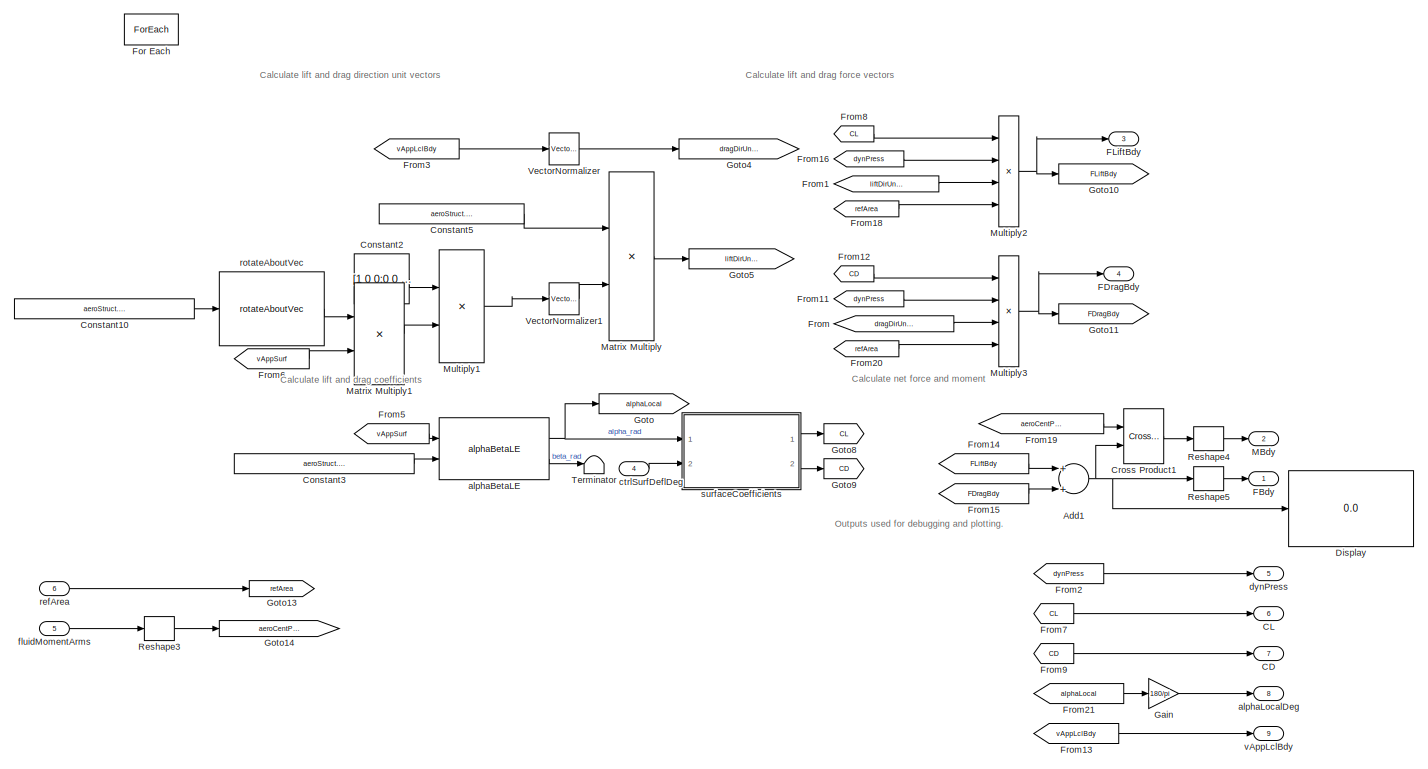
[diagram: plant/vehicle/vehicleLETest/fluidDynamicSurface - part 1/2, center side, full height]
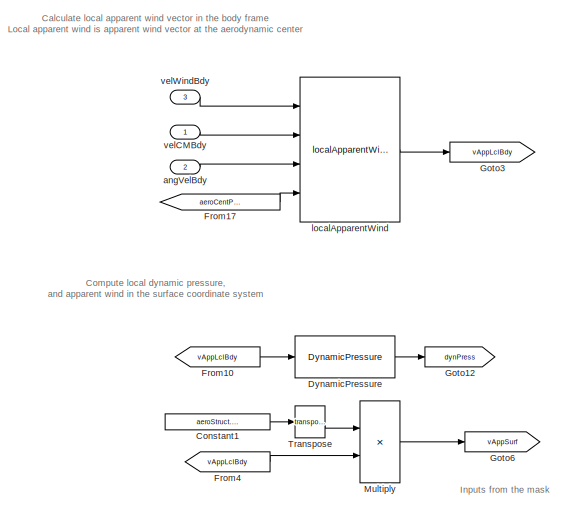
[diagram: plant/vehicle/vehicleLETest/fluidDynamicSurface - part 2/2, middle left region]
BLOCK [SubSystem] plant/vehicle/vehicleLETest/fluidDynamicSurface
  AncestorBlock = fluidDynamicSurface_cl/fluidDynamicSurface
  MinAlgLoopOccurrences = on
  Ports = [6, 9]
  RequestExecContextInheritance = off
BLOCK [Sum] plant/vehicle/vehicleLETest/fluidDynamicSurface/Add1
  InputSameDT = off
  OutDataTypeStr = Inherit: Inherit via internal rule
  Ports = [2, 1]
  SaturateOnIntegerOverflow = off
BLOCK [Outport] plant/vehicle/vehicleLETest/fluidDynamicSurface/CD
  ConcatenationDimension = 2
  IconDisplay = Port number
  Port = 7
BLOCK [Outport] plant/vehicle/vehicleLETest/fluidDynamicSurface/CL
  ConcatenationDimension = 2
  IconDisplay = Port number
  Port = 6
BLOCK [Constant] plant/vehicle/vehicleLETest/fluidDynamicSurface/Constant1
  Value = aeroStruct.RSurf2Bdy
BLOCK [Constant] plant/vehicle/vehicleLETest/fluidDynamicSurface/Constant10
  Value = aeroStruct.incAlphaUnitVecSurf
BLOCK [Constant] plant/vehicle/vehicleLETest/fluidDynamicSurface/Constant2
  Value = [1 0 0;0 0 0;0 0 1]
BLOCK [Constant] plant/vehicle/vehicleLETest/fluidDynamicSurface/Constant3
  Value = aeroStruct.incAlphaUnitVecSurf
BLOCK [Constant] plant/vehicle/vehicleLETest/fluidDynamicSurface/Constant5
  Value = aeroStruct.RSurf2Bdy
BLOCK [Reference] plant/vehicle/vehicleLETest/fluidDynamicSurface/Cross Product1  REF=vrlib/Utilities/Cross Product
  Ports = [2, 1]
  SourceBlock = vrlib/Utilities/Cross Product
  SourceProductBaseCode = VR
  SourceProductName = Simulink 3D Animation
  SourceType = Cross Product
BLOCK [Display] plant/vehicle/vehicleLETest/fluidDynamicSurface/Display
  Decimation = 1
  Ports = [1]
BLOCK [Reference] plant/vehicle/vehicleLETest/fluidDynamicSurface/DynamicPressure  REF=dynamicPressure_ul/DynamicPressure
  Ports = [1, 1]
  SourceBlock = dynamicPressure_ul/DynamicPressure
BLOCK [Outport] plant/vehicle/vehicleLETest/fluidDynamicSurface/FBdy
  ConcatenationDimension = 2
  IconDisplay = Port number
BLOCK [Outport] plant/vehicle/vehicleLETest/fluidDynamicSurface/FDragBdy
  ConcatenationDimension = 2
  IconDisplay = Port number
  Port = 4
BLOCK [Outport] plant/vehicle/vehicleLETest/fluidDynamicSurface/FLiftBdy
  ConcatenationDimension = 2
  IconDisplay = Port number
  Port = 3
BLOCK [ForEach] plant/vehicle/vehicleLETest/fluidDynamicSurface/For Each
  DisableCoverage = on
  IndexMode = One-based
  IterateSubsysMaskParameter = on,off
  Ports = []
  SubsysMaskParameterIterationDimension = 2,1
BLOCK [From] plant/vehicle/vehicleLETest/fluidDynamicSurface/From
  GotoTag = dragDirUnitVecBdy
BLOCK [From] plant/vehicle/vehicleLETest/fluidDynamicSurface/From1
  GotoTag = liftDirUnitVecBdy
BLOCK [From] plant/vehicle/vehicleLETest/fluidDynamicSurface/From10
  GotoTag = vAppLclBdy
BLOCK [From] plant/vehicle/vehicleLETest/fluidDynamicSurface/From11
  GotoTag = dynPress
BLOCK [From] plant/vehicle/vehicleLETest/fluidDynamicSurface/From12
  GotoTag = CD
BLOCK [From] plant/vehicle/vehicleLETest/fluidDynamicSurface/From13
  GotoTag = vAppLclBdy
BLOCK [From] plant/vehicle/vehicleLETest/fluidDynamicSurface/From14
  GotoTag = FLiftBdy
BLOCK [From] plant/vehicle/vehicleLETest/fluidDynamicSurface/From15
  GotoTag = FDragBdy
BLOCK [From] plant/vehicle/vehicleLETest/fluidDynamicSurface/From16
  GotoTag = dynPress
BLOCK [From] plant/vehicle/vehicleLETest/fluidDynamicSurface/From17
  GotoTag = aeroCentPosVecBdy
BLOCK [From] plant/vehicle/vehicleLETest/fluidDynamicSurface/From18
  GotoTag = refArea
BLOCK [From] plant/vehicle/vehicleLETest/fluidDynamicSurface/From19
  GotoTag = aeroCentPosVecBdy
BLOCK [From] plant/vehicle/vehicleLETest/fluidDynamicSurface/From2
  GotoTag = dynPress
BLOCK [From] plant/vehicle/vehicleLETest/fluidDynamicSurface/From20
  GotoTag = refArea
BLOCK [From] plant/vehicle/vehicleLETest/fluidDynamicSurface/From21
  GotoTag = alphaLocal
BLOCK [From] plant/vehicle/vehicleLETest/fluidDynamicSurface/From3
  GotoTag = vAppLclBdy
BLOCK [From] plant/vehicle/vehicleLETest/fluidDynamicSurface/From4
  GotoTag = vAppLclBdy
BLOCK [From] plant/vehicle/vehicleLETest/fluidDynamicSurface/From5
  GotoTag = vAppSurf
BLOCK [From] plant/vehicle/vehicleLETest/fluidDynamicSurface/From6
  GotoTag = vAppSurf
BLOCK [From] plant/vehicle/vehicleLETest/fluidDynamicSurface/From7
  GotoTag = CL
BLOCK [From] plant/vehicle/vehicleLETest/fluidDynamicSurface/From8
  GotoTag = CL
BLOCK [From] plant/vehicle/vehicleLETest/fluidDynamicSurface/From9
  GotoTag = CD
BLOCK [Gain] plant/vehicle/vehicleLETest/fluidDynamicSurface/Gain
  Gain = 180/pi
  OutDataTypeStr = Inherit: Inherit via internal rule
  ParamDataTypeStr = Inherit: Inherit via internal rule
  SaturateOnIntegerOverflow = off
BLOCK [Goto] plant/vehicle/vehicleLETest/fluidDynamicSurface/Goto
  GotoTag = alphaLocal
BLOCK [Goto] plant/vehicle/vehicleLETest/fluidDynamicSurface/Goto10
  GotoTag = FLiftBdy
BLOCK [Goto] plant/vehicle/vehicleLETest/fluidDynamicSurface/Goto11
  GotoTag = FDragBdy
BLOCK [Goto] plant/vehicle/vehicleLETest/fluidDynamicSurface/Goto12
  GotoTag = dynPress
BLOCK [Goto] plant/vehicle/vehicleLETest/fluidDynamicSurface/Goto13
  GotoTag = refArea
BLOCK [Goto] plant/vehicle/vehicleLETest/fluidDynamicSurface/Goto14
  GotoTag = aeroCentPosVecBdy
BLOCK [Goto] plant/vehicle/vehicleLETest/fluidDynamicSurface/Goto3
  GotoTag = vAppLclBdy
BLOCK [Goto] plant/vehicle/vehicleLETest/fluidDynamicSurface/Goto4
  GotoTag = dragDirUnitVecBdy
BLOCK [Goto] plant/vehicle/vehicleLETest/fluidDynamicSurface/Goto5
  GotoTag = liftDirUnitVecBdy
BLOCK [Goto] plant/vehicle/vehicleLETest/fluidDynamicSurface/Goto6
  GotoTag = vAppSurf
BLOCK [Goto] plant/vehicle/vehicleLETest/fluidDynamicSurface/Goto8
  GotoTag = CL
BLOCK [Goto] plant/vehicle/vehicleLETest/fluidDynamicSurface/Goto9
  GotoTag = CD
BLOCK [Outport] plant/vehicle/vehicleLETest/fluidDynamicSurface/MBdy
  ConcatenationDimension = 2
  IconDisplay = Port number
  Port = 2
  PortDimensions = [3 1]
BLOCK [Product] plant/vehicle/vehicleLETest/fluidDynamicSurface/Matrix Multiply
  InputSameDT = off
  Multiplication = Matrix(*)
  OutDataTypeStr = Inherit: Inherit via internal rule
  Ports = [2, 1]
  RndMeth = Floor
  SaturateOnIntegerOverflow = off
BLOCK [Product] plant/vehicle/vehicleLETest/fluidDynamicSurface/Matrix Multiply1
  InputSameDT = off
  Multiplication = Matrix(*)
  OutDataTypeStr = Inherit: Inherit via internal rule
  Ports = [2, 1]
  RndMeth = Floor
  SaturateOnIntegerOverflow = off
BLOCK [Product] plant/vehicle/vehicleLETest/fluidDynamicSurface/Multiply
  InputSameDT = off
  Multiplication = Matrix(*)
  OutDataTypeStr = Inherit: Inherit via internal rule
  Ports = [2, 1]
  RndMeth = Floor
  SaturateOnIntegerOverflow = off
BLOCK [Product] plant/vehicle/vehicleLETest/fluidDynamicSurface/Multiply1
  InputSameDT = off
  Multiplication = Matrix(*)
  OutDataTypeStr = Inherit: Inherit via internal rule
  Ports = [2, 1]
  RndMeth = Floor
  SaturateOnIntegerOverflow = off
BLOCK [Product] plant/vehicle/vehicleLETest/fluidDynamicSurface/Multiply2
  InputSameDT = off
  Inputs = 4
  OutDataTypeStr = Inherit: Inherit via internal rule
  Ports = [4, 1]
  RndMeth = Floor
  SaturateOnIntegerOverflow = off
BLOCK [Product] plant/vehicle/vehicleLETest/fluidDynamicSurface/Multiply3
  InputSameDT = off
  Inputs = 4
  OutDataTypeStr = Inherit: Inherit via internal rule
  Ports = [4, 1]
  RndMeth = Floor
  SaturateOnIntegerOverflow = off
BLOCK [Reshape] plant/vehicle/vehicleLETest/fluidDynamicSurface/Reshape3
  OutputDimensionality = Column vector (2-D)
  Ports = [1, 1]
BLOCK [Reshape] plant/vehicle/vehicleLETest/fluidDynamicSurface/Reshape4
  OutputDimensionality = Column vector (2-D)
  Ports = [1, 1]
BLOCK [Reshape] plant/vehicle/vehicleLETest/fluidDynamicSurface/Reshape5
  OutputDimensionality = Column vector (2-D)
  Ports = [1, 1]
BLOCK [Terminator] plant/vehicle/vehicleLETest/fluidDynamicSurface/Terminator
BLOCK [Math] plant/vehicle/vehicleLETest/fluidDynamicSurface/Transpose
  Operator = transpose
  Ports = [1, 1]
BLOCK [Reference] plant/vehicle/vehicleLETest/fluidDynamicSurface/VectorNormalizer   REF=vectorNormalizer_ul/VectorNormalizer

  Ports = [1, 1]
  SourceBlock = vectorNormalizer_ul/VectorNormalizer
  SourceType = SubSystem
BLOCK [Reference] plant/vehicle/vehicleLETest/fluidDynamicSurface/VectorNormalizer1  REF=vectorNormalizer_ul/VectorNormalizer

  Ports = [1, 1]
  SourceBlock = vectorNormalizer_ul/VectorNormalizer
  SourceType = SubSystem
BLOCK [Reference] plant/vehicle/vehicleLETest/fluidDynamicSurface/alphaBetaLE  REF=alphaBetaLE_ul/alphaBetaLE
  Ports = [2, 2]
  SourceBlock = alphaBetaLE_ul/alphaBetaLE
  SourceType = SubSystem
BLOCK [Outport] plant/vehicle/vehicleLETest/fluidDynamicSurface/alphaLocalDeg
  ConcatenationDimension = 2
  IconDisplay = Port number
  Port = 8
BLOCK [Inport] plant/vehicle/vehicleLETest/fluidDynamicSurface/angVelBdy
  IconDisplay = Port number
  Port = 2
BLOCK [Inport] plant/vehicle/vehicleLETest/fluidDynamicSurface/ctrlSurfDeflDeg
  IconDisplay = Port number
  Partition = on
  PartitionDimension = 1
  PartitionOffset = 0
  PartitionWidth = 1
  Port = 4
BLOCK [Outport] plant/vehicle/vehicleLETest/fluidDynamicSurface/dynPress
  ConcatenationDimension = 2
  IconDisplay = Port number
  Port = 5
BLOCK [Inport] plant/vehicle/vehicleLETest/fluidDynamicSurface/fluidMomentArms
  IconDisplay = Port number
  Partition = on
  PartitionDimension = 2
  PartitionOffset = 0
  PartitionWidth = 1
  Port = 5
BLOCK [Reference] plant/vehicle/vehicleLETest/fluidDynamicSurface/localApparentWind  REF=localApparentWind_ul/localApparentWind
  Ports = [4, 1]
  SourceBlock = localApparentWind_ul/localApparentWind
  SourceType = SubSystem
BLOCK [Inport] plant/vehicle/vehicleLETest/fluidDynamicSurface/refArea
  IconDisplay = Port number
  Port = 6
BLOCK [Reference] plant/vehicle/vehicleLETest/fluidDynamicSurface/rotateAboutVec  REF=rotateAboutVec/rotateAboutVec
  Ports = [1, 1]
  SourceBlock = rotateAboutVec/rotateAboutVec
BLOCK [SubSystem] plant/vehicle/vehicleLETest/fluidDynamicSurface/surfaceCoefficients
  AncestorBlock = surfaceCoefficients_ul/surfaceCoefficients
  Ports = [2, 2]
  RequestExecContextInheritance = off
BLOCK [Sum] plant/vehicle/vehicleLETest/fluidDynamicSurface/surfaceCoefficients/Add
  InputSameDT = off
  OutDataTypeStr = Inherit: Inherit via internal rule
  Ports = [2, 1]
  SaturateOnIntegerOverflow = off
BLOCK [Sum] plant/vehicle/vehicleLETest/fluidDynamicSurface/surfaceCoefficients/Add1
  InputSameDT = off
  OutDataTypeStr = Inherit: Inherit via internal rule
  Ports = [2, 1]
  SaturateOnIntegerOverflow = off
BLOCK [Sum] plant/vehicle/vehicleLETest/fluidDynamicSurface/surfaceCoefficients/Add2
  InputSameDT = off
  OutDataTypeStr = Inherit: Inherit via internal rule
  Ports = [2, 1]
  SaturateOnIntegerOverflow = off
BLOCK [Outport] plant/vehicle/vehicleLETest/fluidDynamicSurface/surfaceCoefficients/CD
  IconDisplay = Port number
  Port = 2
BLOCK [Lookup_n-D] plant/vehicle/vehicleLETest/fluidDynamicSurface/surfaceCoefficients/CDTable
  BreakpointsForDimension1 = aeroStruct.alpha
  ExtrapMethod = Clip
  InternalRulePriority = Speed
  LookupTableObject = CLTable
  NumberOfTableDimensions = 1
  Ports = [1, 1]
  RndMeth = Simplest
  Table = aeroStruct.CD
  UseLastTableValue = on
BLOCK [Outport] plant/vehicle/vehicleLETest/fluidDynamicSurface/surfaceCoefficients/CL
  IconDisplay = Port number
BLOCK [Lookup_n-D] plant/vehicle/vehicleLETest/fluidDynamicSurface/surfaceCoefficients/CLTable
  BreakpointsForDimension1 = aeroStruct.alpha
  ExtrapMethod = Clip
  InternalRulePriority = Speed
  LookupTableObject = CLTable
  NumberOfTableDimensions = 1
  Ports = [1, 1]
  RndMeth = Simplest
  Table = aeroStruct.CL
  UseLastTableValue = on
BLOCK [Constant] plant/vehicle/vehicleLETest/fluidDynamicSurface/surfaceCoefficients/Constant1
  Value = aeroStruct.gainCD
BLOCK [Constant] plant/vehicle/vehicleLETest/fluidDynamicSurface/surfaceCoefficients/Constant4
  Value = aeroStruct.CL
BLOCK [Constant] plant/vehicle/vehicleLETest/fluidDynamicSurface/surfaceCoefficients/Constant5
  Value = aeroStruct.CL
BLOCK [Constant] plant/vehicle/vehicleLETest/fluidDynamicSurface/surfaceCoefficients/Constant6
  Value = aeroStruct.alpha
BLOCK [Constant] plant/vehicle/vehicleLETest/fluidDynamicSurface/surfaceCoefficients/Constant7
  Value = aeroStruct.alpha
BLOCK [Constant] plant/vehicle/vehicleLETest/fluidDynamicSurface/surfaceCoefficients/Constant8
  Value = aeroStruct.gainCL
BLOCK [Constant] plant/vehicle/vehicleLETest/fluidDynamicSurface/surfaceCoefficients/Constant9
BLOCK [Product] plant/vehicle/vehicleLETest/fluidDynamicSurface/surfaceCoefficients/Divide
  InputSameDT = off
  Inputs = */
  OutDataTypeStr = Inherit: Inherit via internal rule
  Ports = [2, 1]
  RndMeth = Floor
  SaturateOnIntegerOverflow = off
BLOCK [Product] plant/vehicle/vehicleLETest/fluidDynamicSurface/surfaceCoefficients/Divide2
  InputSameDT = off
  Inputs = */
  OutDataTypeStr = Inherit: Inherit via internal rule
  Ports = [2, 1]
  RndMeth = Floor
  SaturateOnIntegerOverflow = off
BLOCK [From] plant/vehicle/vehicleLETest/fluidDynamicSurface/surfaceCoefficients/From
  GotoTag = dCL
BLOCK [From] plant/vehicle/vehicleLETest/fluidDynamicSurface/surfaceCoefficients/From1
  GotoTag = dCD
BLOCK [From] plant/vehicle/vehicleLETest/fluidDynamicSurface/surfaceCoefficients/From2
  GotoTag = alphaRad
BLOCK [From] plant/vehicle/vehicleLETest/fluidDynamicSurface/surfaceCoefficients/From3
  GotoTag = posAlphaCLRatio
BLOCK [From] plant/vehicle/vehicleLETest/fluidDynamicSurface/surfaceCoefficients/From4
  GotoTag = clsurf
BLOCK [From] plant/vehicle/vehicleLETest/fluidDynamicSurface/surfaceCoefficients/From5
  GotoTag = alphaRad
BLOCK [From] plant/vehicle/vehicleLETest/fluidDynamicSurface/surfaceCoefficients/From6
  GotoTag = gainRatio
BLOCK [From] plant/vehicle/vehicleLETest/fluidDynamicSurface/surfaceCoefficients/From7
  GotoTag = gainRatio
BLOCK [From] plant/vehicle/vehicleLETest/fluidDynamicSurface/surfaceCoefficients/From8
  GotoTag = clsurf
BLOCK [From] plant/vehicle/vehicleLETest/fluidDynamicSurface/surfaceCoefficients/From9
  GotoTag = negAlphaCLRatio
BLOCK [Gain] plant/vehicle/vehicleLETest/fluidDynamicSurface/surfaceCoefficients/Gain
  Gain = 180/pi
  OutDataTypeStr = Inherit: Inherit via internal rule
  ParamDataTypeStr = Inherit: Inherit via internal rule
  SaturateOnIntegerOverflow = off
BLOCK [Gain] plant/vehicle/vehicleLETest/fluidDynamicSurface/surfaceCoefficients/Gain1
  Gain = 2
  OutDataTypeStr = Inherit: Inherit via internal rule
  ParamDataTypeStr = Inherit: Inherit via internal rule
  SaturateOnIntegerOverflow = off
BLOCK [Gain] plant/vehicle/vehicleLETest/fluidDynamicSurface/surfaceCoefficients/Gain2
  Gain = pi/180
  OutDataTypeStr = Inherit: Inherit via internal rule
  ParamDataTypeStr = Inherit: Inherit via internal rule
  SaturateOnIntegerOverflow = off
BLOCK [Gain] plant/vehicle/vehicleLETest/fluidDynamicSurface/surfaceCoefficients/Gain3
  Gain = pi/180
  OutDataTypeStr = Inherit: Inherit via internal rule
  ParamDataTypeStr = Inherit: Inherit via internal rule
  SaturateOnIntegerOverflow = off
BLOCK [Goto] plant/vehicle/vehicleLETest/fluidDynamicSurface/surfaceCoefficients/Goto
  GotoTag = dCL
BLOCK [Goto] plant/vehicle/vehicleLETest/fluidDynamicSurface/surfaceCoefficients/Goto1
  GotoTag = dCD
BLOCK [Goto] plant/vehicle/vehicleLETest/fluidDynamicSurface/surfaceCoefficients/Goto2
  GotoTag = clsurf
BLOCK [Goto] plant/vehicle/vehicleLETest/fluidDynamicSurface/surfaceCoefficients/Goto3
  GotoTag = posAlphaCLRatio
BLOCK [Goto] plant/vehicle/vehicleLETest/fluidDynamicSurface/surfaceCoefficients/Goto4
  GotoTag = alphaRad
BLOCK [Goto] plant/vehicle/vehicleLETest/fluidDynamicSurface/surfaceCoefficients/Goto5
  GotoTag = gainRatio
BLOCK [Goto] plant/vehicle/vehicleLETest/fluidDynamicSurface/surfaceCoefficients/Goto6
  GotoTag = negAlphaCLRatio
BLOCK [RelationalOperator] plant/vehicle/vehicleLETest/fluidDynamicSurface/surfaceCoefficients/GreaterThan
  InputSameDT = off
  Operator = >
  OutDataTypeStr = boolean
  Ports = [2, 1]
  RndMeth = Simplest
BLOCK [RelationalOperator] plant/vehicle/vehicleLETest/fluidDynamicSurface/surfaceCoefficients/GreaterThan1
  InputSameDT = off
  Operator = <
  OutDataTypeStr = boolean
  Ports = [2, 1]
  RndMeth = Simplest
BLOCK [MultiPortSwitch] plant/vehicle/vehicleLETest/fluidDynamicSurface/surfaceCoefficients/Index Vector
  DataPortOrder = Zero-based contiguous
  InputSameDT = off
  Ports = [4, 1]
  SaturateOnIntegerOverflow = off
  zeroidx = on
BLOCK [Reference] plant/vehicle/vehicleLETest/fluidDynamicSurface/surfaceCoefficients/Maximum  REF=dspstat3/Maximum
  Ports = [1, 2]
  SourceBlock = dspstat3/Maximum
  SourceProductBaseCode = DS
  SourceProductName = DSP System Toolbox
  SourceType = Maximum
  UserDataPersistent = on
BLOCK [Reference] plant/vehicle/vehicleLETest/fluidDynamicSurface/surfaceCoefficients/Minimum  REF=dspstat3/Minimum
  Ports = [1, 2]
  SourceBlock = dspstat3/Minimum
  SourceProductBaseCode = DS
  SourceProductName = DSP System Toolbox
  SourceType = Minimum
  UserDataPersistent = on
BLOCK [Product] plant/vehicle/vehicleLETest/fluidDynamicSurface/surfaceCoefficients/Multiply
  InputSameDT = off
  OutDataTypeStr = Inherit: Inherit via internal rule
  Ports = [2, 1]
  RndMeth = Floor
  SaturateOnIntegerOverflow = off
BLOCK [Product] plant/vehicle/vehicleLETest/fluidDynamicSurface/surfaceCoefficients/Multiply1
  InputSameDT = off
  OutDataTypeStr = Inherit: Inherit via internal rule
  Ports = [2, 1]
  RndMeth = Floor
  SaturateOnIntegerOverflow = off
BLOCK [RateLimiter] plant/vehicle/vehicleLETest/fluidDynamicSurface/surfaceCoefficients/Rate Limiter
  FallingSlewLimit = -aeroStruct.maxCtrlDefSpeed
  RisingSlewLimit = aeroStruct.maxCtrlDefSpeed
  SampleTimeMode = inherited
BLOCK [Saturate] plant/vehicle/vehicleLETest/fluidDynamicSurface/surfaceCoefficients/Saturation
  InputPortMap = u0
  LowerLimit = -90
  Ports = [1, 1]
  UpperLimit = 90
BLOCK [Saturate] plant/vehicle/vehicleLETest/fluidDynamicSurface/surfaceCoefficients/Saturation1
  InputPortMap = u0
  LowerLimit = aeroStruct.minCtrlDef
  Ports = [1, 1]
  UpperLimit = aeroStruct.maxCtrlDef
BLOCK [Selector] plant/vehicle/vehicleLETest/fluidDynamicSurface/surfaceCoefficients/Selector
  IndexOptions = Index vector (port)
  Indices = [1 3]
  InputPortWidth = length(vhcl.portWing.alpha.Value)
  OutputSizes = 1
  Ports = [2, 1]
BLOCK [Selector] plant/vehicle/vehicleLETest/fluidDynamicSurface/surfaceCoefficients/Selector1
  IndexOptions = Index vector (port)
  Indices = [1 3]
  InputPortWidth = length(vhcl.portWing.alpha.Value)
  OutputSizes = 1
  Ports = [2, 1]
BLOCK [Inport] plant/vehicle/vehicleLETest/fluidDynamicSurface/surfaceCoefficients/alphaRad
  IconDisplay = Port number
BLOCK [Inport] plant/vehicle/vehicleLETest/fluidDynamicSurface/surfaceCoefficients/ctrlSurfDeflDeg
  IconDisplay = Port number
  Port = 2
BLOCK [Reference] plant/vehicle/vehicleLETest/fluidDynamicSurface/surfaceCoefficients/dCD  REF=dsppolyfun/Polynomial
Evaluation
  Ports = [2, 1]
  SourceBlock = dsppolyfun/Polynomial\nEvaluation
  SourceProductBaseCode = DS
  SourceProductName = DSP System Toolbox
  SourceType = Polynomial Evaluation
BLOCK [Reference] plant/vehicle/vehicleLETest/fluidDynamicSurface/surfaceCoefficients/dCL  REF=dsppolyfun/Polynomial
Evaluation
  Ports = [2, 1]
  SourceBlock = dsppolyfun/Polynomial\nEvaluation
  SourceProductBaseCode = DS
  SourceProductName = DSP System Toolbox
  SourceType = Polynomial Evaluation
BLOCK [Outport] plant/vehicle/vehicleLETest/fluidDynamicSurface/vAppLclBdy
  ConcatenationDimension = 2
  IconDisplay = Port number
  Port = 9
BLOCK [Inport] plant/vehicle/vehicleLETest/fluidDynamicSurface/velCMBdy
  IconDisplay = Port number
BLOCK [Inport] plant/vehicle/vehicleLETest/fluidDynamicSurface/velWindBdy
  IconDisplay = Port number
  Partition = on
  PartitionDimension = 2
  PartitionOffset = 0
  PartitionWidth = 1
  Port = 3
BLOCK [Outport] plant/vehicle/vehicleLETest/fluidPosVecGnd
  IconDisplay = Port number
  Port = 6
BLOCK [SubSystem] plant/vehicle/vehicleLETest/fuselage
  AncestorBlock = fuselage_cl/fuselage
  Ports = [3, 2]
  RequestExecContextInheritance = off
BLOCK [Sum] plant/vehicle/vehicleLETest/fuselage/Add
  InputSameDT = off
  OutDataTypeStr = Inherit: Inherit via internal rule
  Ports = [2, 1]
  SaturateOnIntegerOverflow = off
BLOCK [Sum] plant/vehicle/vehicleLETest/fuselage/Add1
  InputSameDT = off
  Inputs = +-
  OutDataTypeStr = Inherit: Inherit via internal rule
  Ports = [2, 1]
  SaturateOnIntegerOverflow = off
BLOCK [Sum] plant/vehicle/vehicleLETest/fuselage/Add2
  InputSameDT = off
  OutDataTypeStr = Inherit: Inherit via internal rule
  Ports = [2, 1]
  SaturateOnIntegerOverflow = off
BLOCK [Sum] plant/vehicle/vehicleLETest/fuselage/Add3
  InputSameDT = off
  OutDataTypeStr = Inherit: Inherit via internal rule
  Ports = [2, 1]
  SaturateOnIntegerOverflow = off
BLOCK [Sum] plant/vehicle/vehicleLETest/fuselage/Add4
  InputSameDT = off
  Inputs = +-
  OutDataTypeStr = Inherit: Inherit via internal rule
  Ports = [2, 1]
  SaturateOnIntegerOverflow = off
BLOCK [Constant] plant/vehicle/vehicleLETest/fuselage/Constant
  Value = (pi/4)*(fus.diameter.Value)^2
BLOCK [Constant] plant/vehicle/vehicleLETest/fuselage/Constant1
BLOCK [Constant] plant/vehicle/vehicleLETest/fuselage/Constant2
  Value = (pi/4)*(fus.diameter.Value)^2
BLOCK [Constant] plant/vehicle/vehicleLETest/fuselage/Constant3
  Value = fus.diameter.Value
BLOCK [Constant] plant/vehicle/vehicleLETest/fuselage/Constant4
  Value = fus.endDragCoeff.Value
BLOCK [Constant] plant/vehicle/vehicleLETest/fuselage/Constant5
BLOCK [Constant] plant/vehicle/vehicleLETest/fuselage/Constant6
  Value = fus.sideDragCoeff.Value
BLOCK [Constant] plant/vehicle/vehicleLETest/fuselage/Constant7
  Value = momArm
BLOCK [Constant] plant/vehicle/vehicleLETest/fuselage/Constant8
  Value = momArm
BLOCK [Constant] plant/vehicle/vehicleLETest/fuselage/Constant9
  Value = fus.length.Value
BLOCK [Reference] plant/vehicle/vehicleLETest/fuselage/Cross Product  REF=vrlib/Utilities/Cross Product
  Ports = [2, 1]
  SourceBlock = vrlib/Utilities/Cross Product
  SourceProductBaseCode = VR
  SourceProductName = Simulink 3D Animation
  SourceType = Cross Product
BLOCK [Reference] plant/vehicle/vehicleLETest/fuselage/DynamicPressure  REF=dynamicPressure_ul/DynamicPressure
  Ports = [1, 1]
  SourceBlock = dynamicPressure_ul/DynamicPressure
BLOCK [Outport] plant/vehicle/vehicleLETest/fuselage/FFuseBdy
  IconDisplay = Port number
BLOCK [From] plant/vehicle/vehicleLETest/fuselage/From
  GotoTag = ux
BLOCK [From] plant/vehicle/vehicleLETest/fuselage/From1
  GotoTag = ux
BLOCK [From] plant/vehicle/vehicleLETest/fuselage/From2
  GotoTag = ux
BLOCK [From] plant/vehicle/vehicleLETest/fuselage/From3
  GotoTag = ux
BLOCK [From] plant/vehicle/vehicleLETest/fuselage/From4
  GotoTag = APrj
BLOCK [From] plant/vehicle/vehicleLETest/fuselage/From5
  GotoTag = CD
BLOCK [From] plant/vehicle/vehicleLETest/fuselage/From6
  GotoTag = uApp
BLOCK [From] plant/vehicle/vehicleLETest/fuselage/From7
  GotoTag = dynPress
BLOCK [Goto] plant/vehicle/vehicleLETest/fuselage/Goto
  GotoTag = APrj
BLOCK [Goto] plant/vehicle/vehicleLETest/fuselage/Goto1
  GotoTag = ux
BLOCK [Goto] plant/vehicle/vehicleLETest/fuselage/Goto2
  GotoTag = CD
BLOCK [Goto] plant/vehicle/vehicleLETest/fuselage/Goto3
  GotoTag = uApp
BLOCK [Goto] plant/vehicle/vehicleLETest/fuselage/Goto4
  GotoTag = dynPress
BLOCK [Outport] plant/vehicle/vehicleLETest/fuselage/MFuseBdy
  IconDisplay = Port number
  Port = 2
BLOCK [Product] plant/vehicle/vehicleLETest/fuselage/Multiply
  InputSameDT = off
  OutDataTypeStr = Inherit: Inherit via internal rule
  Ports = [2, 1]
  RndMeth = Floor
  SaturateOnIntegerOverflow = off
BLOCK [Product] plant/vehicle/vehicleLETest/fuselage/Multiply1
  InputSameDT = off
  OutDataTypeStr = Inherit: Inherit via internal rule
  Ports = [2, 1]
  RndMeth = Floor
  SaturateOnIntegerOverflow = off
BLOCK [Product] plant/vehicle/vehicleLETest/fuselage/Multiply2
  InputSameDT = off
  OutDataTypeStr = Inherit: Inherit via internal rule
  Ports = [2, 1]
  RndMeth = Floor
  SaturateOnIntegerOverflow = off
BLOCK [Product] plant/vehicle/vehicleLETest/fuselage/Multiply3
  InputSameDT = off
  OutDataTypeStr = Inherit: Inherit via internal rule
  Ports = [2, 1]
  RndMeth = Floor
  SaturateOnIntegerOverflow = off
BLOCK [Product] plant/vehicle/vehicleLETest/fuselage/Multiply4
  InputSameDT = off
  Inputs = 4
  OutDataTypeStr = Inherit: Inherit via internal rule
  Ports = [4, 1]
  RndMeth = Floor
  SaturateOnIntegerOverflow = off
BLOCK [Product] plant/vehicle/vehicleLETest/fuselage/Multiply5
  InputSameDT = off
  OutDataTypeStr = Inherit: Inherit via internal rule
  Ports = [2, 1]
  RndMeth = Floor
  SaturateOnIntegerOverflow = off
BLOCK [Reference] plant/vehicle/vehicleLETest/fuselage/Normalize Vector  REF=vrlib/Utilities/Normalize Vector
  Ports = [1, 1]
  SourceBlock = vrlib/Utilities/Normalize Vector
  SourceProductBaseCode = VR
  SourceProductName = Simulink 3D Animation
  SourceType = Normalize Vector
BLOCK [Selector] plant/vehicle/vehicleLETest/fuselage/Selector
  IndexOptions = Index vector (dialog)
  Indices = 1
  InputPortWidth = 3
  OutputSizes = 1
  Ports = [1, 1]
BLOCK [Inport] plant/vehicle/vehicleLETest/fuselage/angVelBdy
  IconDisplay = Port number
  Port = 3
BLOCK [Reference] plant/vehicle/vehicleLETest/fuselage/localApparentWind  REF=localApparentWind_ul/localApparentWind
  Ports = [4, 1]
  SourceBlock = localApparentWind_ul/localApparentWind
  SourceType = SubSystem
BLOCK [Inport] plant/vehicle/vehicleLETest/fuselage/velVecBdy
  IconDisplay = Port number
  Port = 2
BLOCK [Inport] plant/vehicle/vehicleLETest/fuselage/velWindBdy
  IconDisplay = Port number
BLOCK [Inport] plant/vehicle/vehicleLETest/nodeForceVecs
  IconDisplay = Port number
  Port = 3
BLOCK [Outport] plant/vehicle/vehicleLETest/posVecGnd
  IconDisplay = Port number
BLOCK [SubSystem] plant/vehicle/vehicleLETest/sixDoFDynamics
  AncestorBlock = sixDoFDynamics_cl/sixDoFDynamics
  InitFcn = initializeVariantsFromBlock(gcb)
  LoadFcn = initializeVariantsFromBlock(gcb)
  Ports = [2, 6]
  RequestExecContextInheritance = off
  Variant = on
BLOCK [Inport] plant/vehicle/vehicleLETest/sixDoFDynamics/FNetBdy
  IconDisplay = Port number
BLOCK [Inport] plant/vehicle/vehicleLETest/sixDoFDynamics/MNetBdy
  IconDisplay = Port number
  Port = 2
BLOCK [Outport] plant/vehicle/vehicleLETest/sixDoFDynamics/RBdy2Inert
  IconDisplay = Port number
  Port = 6
BLOCK [Outport] plant/vehicle/vehicleLETest/sixDoFDynamics/Rinert2Bdy
  IconDisplay = Port number
  Port = 5
BLOCK [Reference] plant/vehicle/vehicleLETest/sixDoFDynamics/SixDoFDynamicsQuat  REF=SixDoFDynamicsQuat_ul/SixDoFDynamicsQuat
  Ports = [2, 6]
  SourceBlock = SixDoFDynamicsQuat_ul/SixDoFDynamicsQuat
BLOCK [Outport] plant/vehicle/vehicleLETest/sixDoFDynamics/angularVel
  IconDisplay = Port number
  Port = 4
BLOCK [Outport] plant/vehicle/vehicleLETest/sixDoFDynamics/eulerAngles
  IconDisplay = Port number
  Port = 3
BLOCK [Outport] plant/vehicle/vehicleLETest/sixDoFDynamics/posVecGnd
  IconDisplay = Port number
BLOCK [SubSystem] plant/vehicle/vehicleLETest/sixDoFDynamics/sixDoFDynamicsCoupled
  AncestorBlock = sixDoFDynamicsCoupled/sixDoFDynamicsCoupled
  Ports = [2, 6]
  RequestExecContextInheritance = off
  VariantControl = VSS_sixDoFDynamics_sixDoFDynamicsCoupled
BLOCK [Sum] plant/vehicle/vehicleLETest/sixDoFDynamics/sixDoFDynamicsCoupled/Add
  InputSameDT = off
  Inputs = +-
  OutDataTypeStr = Inherit: Inherit via internal rule
  Ports = [2, 1]
  SaturateOnIntegerOverflow = off
BLOCK [Sum] plant/vehicle/vehicleLETest/sixDoFDynamics/sixDoFDynamicsCoupled/Add1
  InputSameDT = off
  OutDataTypeStr = Inherit: Inherit via internal rule
  Ports = [2, 1]
  SaturateOnIntegerOverflow = off
BLOCK [Sum] plant/vehicle/vehicleLETest/sixDoFDynamics/sixDoFDynamicsCoupled/Add10
  InputSameDT = off
  OutDataTypeStr = Inherit: Inherit via internal rule
  Ports = [2, 1]
  SaturateOnIntegerOverflow = off
BLOCK [Sum] plant/vehicle/vehicleLETest/sixDoFDynamics/sixDoFDynamicsCoupled/Add2
  InputSameDT = off
  OutDataTypeStr = Inherit: Inherit via internal rule
  Ports = [2, 1]
  SaturateOnIntegerOverflow = off
BLOCK [Sum] plant/vehicle/vehicleLETest/sixDoFDynamics/sixDoFDynamicsCoupled/Add3
  InputSameDT = off
  OutDataTypeStr = Inherit: Inherit via internal rule
  Ports = [2, 1]
  SaturateOnIntegerOverflow = off
BLOCK [Sum] plant/vehicle/vehicleLETest/sixDoFDynamics/sixDoFDynamicsCoupled/Add4
  InputSameDT = off
  Inputs = +-
  OutDataTypeStr = Inherit: Inherit via internal rule
  Ports = [2, 1]
  SaturateOnIntegerOverflow = off
BLOCK [Constant] plant/vehicle/vehicleLETest/sixDoFDynamics/sixDoFDynamicsCoupled/Constant
  Value = MTotInv
  VectorParams1D = off
BLOCK [Constant] plant/vehicle/vehicleLETest/sixDoFDynamics/sixDoFDynamicsCoupled/Constant1
  Value = rCM_B
BLOCK [Constant] plant/vehicle/vehicleLETest/sixDoFDynamics/sixDoFDynamicsCoupled/Constant12
  Value = rCM_B
BLOCK [Constant] plant/vehicle/vehicleLETest/sixDoFDynamics/sixDoFDynamicsCoupled/Constant2
  Value = rCM_B
BLOCK [Constant] plant/vehicle/vehicleLETest/sixDoFDynamics/sixDoFDynamicsCoupled/Constant3
  Value = initVel
BLOCK [Constant] plant/vehicle/vehicleLETest/sixDoFDynamics/sixDoFDynamicsCoupled/Constant4
  Value = initAngVel
BLOCK [Constant] plant/vehicle/vehicleLETest/sixDoFDynamics/sixDoFDynamicsCoupled/Constant5
  Value = initPos
BLOCK [Constant] plant/vehicle/vehicleLETest/sixDoFDynamics/sixDoFDynamicsCoupled/Constant6
  Value = initEulAngs
BLOCK [Constant] plant/vehicle/vehicleLETest/sixDoFDynamics/sixDoFDynamicsCoupled/Constant7
  Value = rCM_B
BLOCK [Constant] plant/vehicle/vehicleLETest/sixDoFDynamics/sixDoFDynamicsCoupled/Constant8
  Value = rCM_B
BLOCK [Reference] plant/vehicle/vehicleLETest/sixDoFDynamics/sixDoFDynamicsCoupled/Cross Product  REF=vrlib/Utilities/Cross Product
  Ports = [2, 1]
  SourceBlock = vrlib/Utilities/Cross Product
  SourceProductBaseCode = VR
  SourceProductName = Simulink 3D Animation
  SourceType = Cross Product
BLOCK [Reference] plant/vehicle/vehicleLETest/sixDoFDynamics/sixDoFDynamicsCoupled/Cross Product1  REF=vrlib/Utilities/Cross Product
  Ports = [2, 1]
  SourceBlock = vrlib/Utilities/Cross Product
  SourceProductBaseCode = VR
  SourceProductName = Simulink 3D Animation
  SourceType = Cross Product
BLOCK [Reference] plant/vehicle/vehicleLETest/sixDoFDynamics/sixDoFDynamicsCoupled/Cross Product2  REF=vrlib/Utilities/Cross Product
  Ports = [2, 1]
  SourceBlock = vrlib/Utilities/Cross Product
  SourceProductBaseCode = VR
  SourceProductName = Simulink 3D Animation
  SourceType = Cross Product
BLOCK [Reference] plant/vehicle/vehicleLETest/sixDoFDynamics/sixDoFDynamicsCoupled/Cross Product3  REF=vrlib/Utilities/Cross Product
  Ports = [2, 1]
  SourceBlock = vrlib/Utilities/Cross Product
  SourceProductBaseCode = VR
  SourceProductName = Simulink 3D Animation
  SourceType = Cross Product
BLOCK [Reference] plant/vehicle/vehicleLETest/sixDoFDynamics/sixDoFDynamicsCoupled/Cross Product4  REF=vrlib/Utilities/Cross Product
  Ports = [2, 1]
  SourceBlock = vrlib/Utilities/Cross Product
  SourceProductBaseCode = VR
  SourceProductName = Simulink 3D Animation
  SourceType = Cross Product
BLOCK [Reference] plant/vehicle/vehicleLETest/sixDoFDynamics/sixDoFDynamicsCoupled/Cross Product5  REF=vrlib/Utilities/Cross Product
  Ports = [2, 1]
  SourceBlock = vrlib/Utilities/Cross Product
  SourceProductBaseCode = VR
  SourceProductName = Simulink 3D Animation
  SourceType = Cross Product
BLOCK [Reference] plant/vehicle/vehicleLETest/sixDoFDynamics/sixDoFDynamicsCoupled/Cross Product6  REF=vrlib/Utilities/Cross Product
  Ports = [2, 1]
  SourceBlock = vrlib/Utilities/Cross Product
  SourceProductBaseCode = VR
  SourceProductName = Simulink 3D Animation
  SourceType = Cross Product
BLOCK [Reference] plant/vehicle/vehicleLETest/sixDoFDynamics/sixDoFDynamicsCoupled/Cross Product7  REF=vrlib/Utilities/Cross Product
  Ports = [2, 1]
  SourceBlock = vrlib/Utilities/Cross Product
  SourceProductBaseCode = VR
  SourceProductName = Simulink 3D Animation
  SourceType = Cross Product
BLOCK [Reference] plant/vehicle/vehicleLETest/sixDoFDynamics/sixDoFDynamicsCoupled/Cross Product8  REF=vrlib/Utilities/Cross Product
  Ports = [2, 1]
  SourceBlock = vrlib/Utilities/Cross Product
  SourceProductBaseCode = VR
  SourceProductName = Simulink 3D Animation
  SourceType = Cross Product
BLOCK [Demux] plant/vehicle/vehicleLETest/sixDoFDynamics/sixDoFDynamicsCoupled/Demux
  DisplayOption = bar
  Outputs = 3
  Ports = [1, 3]
BLOCK [Display] plant/vehicle/vehicleLETest/sixDoFDynamics/sixDoFDynamicsCoupled/Display1
  Decimation = 1
  Format = long
  Ports = [1]
BLOCK [Display] plant/vehicle/vehicleLETest/sixDoFDynamics/sixDoFDynamicsCoupled/Display2
  Decimation = 1
  Format = long
  Ports = [1]
BLOCK [Display] plant/vehicle/vehicleLETest/sixDoFDynamics/sixDoFDynamicsCoupled/Display3
  Decimation = 1
  Format = long
  Ports = [1]
BLOCK [Display] plant/vehicle/vehicleLETest/sixDoFDynamics/sixDoFDynamicsCoupled/Display4
  Decimation = 1
  Format = long
  Ports = [1]
BLOCK [Reference] plant/vehicle/vehicleLETest/sixDoFDynamics/sixDoFDynamicsCoupled/EulerAngle2RotMat  REF=eulAng2RotMat_ul/EulerAngle2RotMat
  Ports = [3, 2]
  SourceBlock = eulAng2RotMat_ul/EulerAngle2RotMat
  SourceType = SubSystem
BLOCK [Inport] plant/vehicle/vehicleLETest/sixDoFDynamics/sixDoFDynamicsCoupled/FNetBdy
  IconDisplay = Port number
BLOCK [From] plant/vehicle/vehicleLETest/sixDoFDynamics/sixDoFDynamicsCoupled/From
  GotoTag = angVel
BLOCK [From] plant/vehicle/vehicleLETest/sixDoFDynamics/sixDoFDynamicsCoupled/From1
  GotoTag = velBdy
BLOCK [From] plant/vehicle/vehicleLETest/sixDoFDynamics/sixDoFDynamicsCoupled/From10
  GotoTag = velBdy
BLOCK [From] plant/vehicle/vehicleLETest/sixDoFDynamics/sixDoFDynamicsCoupled/From11
  GotoTag = angVel
BLOCK [From] plant/vehicle/vehicleLETest/sixDoFDynamics/sixDoFDynamicsCoupled/From2
  GotoTag = velGround
BLOCK [From] plant/vehicle/vehicleLETest/sixDoFDynamics/sixDoFDynamicsCoupled/From3
  GotoTag = eulAng
BLOCK [From] plant/vehicle/vehicleLETest/sixDoFDynamics/sixDoFDynamicsCoupled/From4
  GotoTag = oCb
BLOCK [From] plant/vehicle/vehicleLETest/sixDoFDynamics/sixDoFDynamicsCoupled/From6
  GotoTag = angVel
BLOCK [From] plant/vehicle/vehicleLETest/sixDoFDynamics/sixDoFDynamicsCoupled/From7
  GotoTag = angVel
BLOCK [From] plant/vehicle/vehicleLETest/sixDoFDynamics/sixDoFDynamicsCoupled/From8
  GotoTag = angVel
BLOCK [From] plant/vehicle/vehicleLETest/sixDoFDynamics/sixDoFDynamicsCoupled/From9
  GotoTag = angVel
BLOCK [Gain] plant/vehicle/vehicleLETest/sixDoFDynamics/sixDoFDynamicsCoupled/Gain
  Gain = J
  Multiplication = Matrix(K*u)
  OutDataTypeStr = Inherit: Inherit via internal rule
  ParamDataTypeStr = Inherit: Inherit via internal rule
  SaturateOnIntegerOverflow = off
BLOCK [Gain] plant/vehicle/vehicleLETest/sixDoFDynamics/sixDoFDynamicsCoupled/Gain1
  Gain = m
  OutDataTypeStr = Inherit: Inherit via internal rule
  ParamDataTypeStr = Inherit: Inherit via internal rule
  SaturateOnIntegerOverflow = off
BLOCK [Gain] plant/vehicle/vehicleLETest/sixDoFDynamics/sixDoFDynamicsCoupled/Gain2
  Gain = m
  OutDataTypeStr = Inherit: Inherit via internal rule
  ParamDataTypeStr = Inherit: Inherit via internal rule
  SaturateOnIntegerOverflow = off
BLOCK [Goto] plant/vehicle/vehicleLETest/sixDoFDynamics/sixDoFDynamicsCoupled/Goto1
  GotoTag = velGround
BLOCK [Goto] plant/vehicle/vehicleLETest/sixDoFDynamics/sixDoFDynamicsCoupled/Goto2
  GotoTag = eulAng
BLOCK [Goto] plant/vehicle/vehicleLETest/sixDoFDynamics/sixDoFDynamicsCoupled/Goto3
  GotoTag = oCb
BLOCK [Goto] plant/vehicle/vehicleLETest/sixDoFDynamics/sixDoFDynamicsCoupled/Goto4
  GotoTag = angVel
BLOCK [Goto] plant/vehicle/vehicleLETest/sixDoFDynamics/sixDoFDynamicsCoupled/Goto5
  GotoTag = velBdy
BLOCK [Integrator] plant/vehicle/vehicleLETest/sixDoFDynamics/sixDoFDynamicsCoupled/Integrator
  InitialConditionSource = external
  Ports = [2, 1]
BLOCK [Integrator] plant/vehicle/vehicleLETest/sixDoFDynamics/sixDoFDynamicsCoupled/Integrator1
  InitialCondition = initEulAngs
  InitialConditionSource = external
  Ports = [2, 1]
BLOCK [Integrator] plant/vehicle/vehicleLETest/sixDoFDynamics/sixDoFDynamicsCoupled/Integrator3
  InitialCondition = initPos
  InitialConditionSource = external
  Ports = [2, 1]
BLOCK [Inport] plant/vehicle/vehicleLETest/sixDoFDynamics/sixDoFDynamicsCoupled/MNetBdy
  IconDisplay = Port number
  Port = 2
BLOCK [Product] plant/vehicle/vehicleLETest/sixDoFDynamics/sixDoFDynamicsCoupled/Matrix Multiply2
  InputSameDT = off
  Multiplication = Matrix(*)
  OutDataTypeStr = Inherit: Inherit via internal rule
  Ports = [2, 1]
  RndMeth = Floor
  SaturateOnIntegerOverflow = off
BLOCK [Product] plant/vehicle/vehicleLETest/sixDoFDynamics/sixDoFDynamicsCoupled/Matrix Multiply3
  InputSameDT = off
  Multiplication = Matrix(*)
  OutDataTypeStr = Inherit: Inherit via internal rule
  Ports = [2, 1]
  RndMeth = Floor
  SaturateOnIntegerOverflow = off
BLOCK [Mux] plant/vehicle/vehicleLETest/sixDoFDynamics/sixDoFDynamicsCoupled/Mux
  DisplayOption = bar
  Inputs = 2
  Ports = [2, 1]
BLOCK [Mux] plant/vehicle/vehicleLETest/sixDoFDynamics/sixDoFDynamicsCoupled/Mux1
  DisplayOption = bar
  Inputs = 2
  Ports = [2, 1]
BLOCK [Mux] plant/vehicle/vehicleLETest/sixDoFDynamics/sixDoFDynamicsCoupled/Mux2
  DisplayOption = bar
  Inputs = 2
  Ports = [2, 1]
BLOCK [Mux] plant/vehicle/vehicleLETest/sixDoFDynamics/sixDoFDynamicsCoupled/Mux3
  DisplayOption = bar
  Inputs = 2
  Ports = [2, 1]
BLOCK [Outport] plant/vehicle/vehicleLETest/sixDoFDynamics/sixDoFDynamicsCoupled/RBdy2Inert
  IconDisplay = Port number
  Port = 6
BLOCK [Reshape] plant/vehicle/vehicleLETest/sixDoFDynamics/sixDoFDynamicsCoupled/Reshape2
  OutputDimensionality = Column vector (2-D)
  Ports = [1, 1]
BLOCK [Reshape] plant/vehicle/vehicleLETest/sixDoFDynamics/sixDoFDynamicsCoupled/Reshape5
  OutputDimensionality = Column vector (2-D)
  Ports = [1, 1]
BLOCK [Outport] plant/vehicle/vehicleLETest/sixDoFDynamics/sixDoFDynamicsCoupled/Rinert2Bdy
  IconDisplay = Port number
  Port = 5
BLOCK [Selector] plant/vehicle/vehicleLETest/sixDoFDynamics/sixDoFDynamicsCoupled/Selector
  IndexOptions = Index vector (dialog)
  Indices = [1 2 3]
  InputPortWidth = 6
  OutputSizes = 1
  Ports = [1, 1]
BLOCK [Selector] plant/vehicle/vehicleLETest/sixDoFDynamics/sixDoFDynamicsCoupled/Selector1
  IndexOptions = Index vector (dialog)
  Indices = [4 5 6]
  InputPortWidth = 6
  OutputSizes = 1
  Ports = [1, 1]
BLOCK [Selector] plant/vehicle/vehicleLETest/sixDoFDynamics/sixDoFDynamicsCoupled/Selector2
  IndexOptions = Index vector (dialog)
  Indices = [1 2 3]
  InputPortWidth = 6
  OutputSizes = 1
  Ports = [1, 1]
BLOCK [Selector] plant/vehicle/vehicleLETest/sixDoFDynamics/sixDoFDynamicsCoupled/Selector3
  IndexOptions = Index vector (dialog)
  Indices = [4 5 6]
  InputPortWidth = 6
  OutputSizes = 1
  Ports = [1, 1]
BLOCK [Selector] plant/vehicle/vehicleLETest/sixDoFDynamics/sixDoFDynamicsCoupled/Selector4
  IndexOptions = Index vector (dialog)
  Indices = [4 5 6]
  InputPortWidth = 6
  OutputSizes = 1
  Ports = [1, 1]
BLOCK [ToWorkspace] plant/vehicle/vehicleLETest/sixDoFDynamics/sixDoFDynamicsCoupled/To Workspace
  FixptAsFi = on
  MaxDataPoints = inf
  Ports = [1]
  SampleTime = -1
  Save2DSignal = 3-D array (concatenate along third dimension)
  SaveFormat = Timeseries
  VariableName = mtinv
BLOCK [Outport] plant/vehicle/vehicleLETest/sixDoFDynamics/sixDoFDynamicsCoupled/angularVel
  IconDisplay = Port number
  Port = 4
BLOCK [Reference] plant/vehicle/vehicleLETest/sixDoFDynamics/sixDoFDynamicsCoupled/eulDot  REF=eulDot/eulDot
  Ports = [2, 1]
  SourceBlock = eulDot/eulDot
  SourceType = SubSystem
BLOCK [Outport] plant/vehicle/vehicleLETest/sixDoFDynamics/sixDoFDynamicsCoupled/eulerAngles
  IconDisplay = Port number
  Port = 3
BLOCK [Outport] plant/vehicle/vehicleLETest/sixDoFDynamics/sixDoFDynamicsCoupled/posVecGnd
  IconDisplay = Port number
BLOCK [Outport] plant/vehicle/vehicleLETest/sixDoFDynamics/sixDoFDynamicsCoupled/velVecGnd
  IconDisplay = Port number
  Port = 2
BLOCK [Reference] plant/vehicle/vehicleLETest/sixDoFDynamics/sixDoFDynamicsEuler  REF=sixDoFDynamicsEuler_ul/sixDoFDynamicsEuler
  Ports = [2, 6]
  SourceBlock = sixDoFDynamicsEuler_ul/sixDoFDynamicsEuler
BLOCK [Outport] plant/vehicle/vehicleLETest/sixDoFDynamics/velVecGnd
  IconDisplay = Port number
  Port = 2
BLOCK [SubSystem] plant/vehicle/vehicleLETest/tethersMoment
  AncestorBlock = tethersMoment_cl/tethersMoment
  Ports = [3, 2]
  RequestExecContextInheritance = off
BLOCK [ForEach] plant/vehicle/vehicleLETest/tethersMoment/For Each
  DisableCoverage = on
  IndexMode = One-based
  IterateSubsysMaskParameter = on
  Ports = []
  SubsysMaskParameterIterationDimension = 2
BLOCK [From] plant/vehicle/vehicleLETest/tethersMoment/From
  GotoTag = R
BLOCK [From] plant/vehicle/vehicleLETest/tethersMoment/From1
  GotoTag = R
BLOCK [Goto] plant/vehicle/vehicleLETest/tethersMoment/Goto
  GotoTag = R
BLOCK [Product] plant/vehicle/vehicleLETest/tethersMoment/Multiply
  InputSameDT = off
  Multiplication = Matrix(*)
  OutDataTypeStr = Inherit: Inherit via internal rule
  Ports = [2, 1]
  RndMeth = Floor
  SaturateOnIntegerOverflow = off
BLOCK [Reshape] plant/vehicle/vehicleLETest/tethersMoment/Reshape
  OutputDimensionality = Column vector (2-D)
  Ports = [1, 1]
BLOCK [Reshape] plant/vehicle/vehicleLETest/tethersMoment/Reshape1
  OutputDimensionality = Column vector (2-D)
  Ports = [1, 1]
BLOCK [Reshape] plant/vehicle/vehicleLETest/tethersMoment/Reshape2
  OutputDimensionality = Column vector (2-D)
  Ports = [1, 1]
BLOCK [Reshape] plant/vehicle/vehicleLETest/tethersMoment/Reshape3
  OutputDimensionality = Column vector (2-D)
  Ports = [1, 1]
BLOCK [SignalSpecification] plant/vehicle/vehicleLETest/tethersMoment/Signal Specification
  Dimensions = [3 1]
BLOCK [Inport] plant/vehicle/vehicleLETest/tethersMoment/forceVecs
  IconDisplay = Port number
  Partition = on
  PartitionDimension = 3
  PartitionOffset = 0
  PartitionWidth = 1
BLOCK [Outport] plant/vehicle/vehicleLETest/tethersMoment/frcVecBdyFrm
  ConcatenationDimension = 2
  IconDisplay = Port number
BLOCK [Inport] plant/vehicle/vehicleLETest/tethersMoment/inrt2BdyFrmRotMat
  IconDisplay = Port number
  Port = 2
BLOCK [Outport] plant/vehicle/vehicleLETest/tethersMoment/mmtVecBdyFrm
  ConcatenationDimension = 2
  IconDisplay = Port number
  Port = 2
BLOCK [Inport] plant/vehicle/vehicleLETest/tethersMoment/momArms
  IconDisplay = Port number
  Partition = on
  PartitionDimension = 2
  PartitionOffset = 0
  PartitionWidth = 1
  Port = 3
BLOCK [SubSystem] plant/vehicle/vehicleLETest/tethersMoment/moment
  Ports = [3, 1]
  RequestExecContextInheritance = off
BLOCK [Reference] plant/vehicle/vehicleLETest/tethersMoment/moment/Cross Product  REF=vrlib/Utilities/Cross Product
  Ports = [2, 1]
  SourceBlock = vrlib/Utilities/Cross Product
  SourceProductBaseCode = VR
  SourceProductName = Simulink 3D Animation
  SourceType = Cross Product
BLOCK [Product] plant/vehicle/vehicleLETest/tethersMoment/moment/Multiply
  InputSameDT = off
  Multiplication = Matrix(*)
  OutDataTypeStr = Inherit: Inherit via internal rule
  Ports = [2, 1]
  RndMeth = Floor
  SaturateOnIntegerOverflow = off
BLOCK [Reshape] plant/vehicle/vehicleLETest/tethersMoment/moment/Reshape
  OutputDimensionality = Column vector (2-D)
  Ports = [1, 1]
BLOCK [Reshape] plant/vehicle/vehicleLETest/tethersMoment/moment/Reshape1
  OutputDimensionality = Column vector (2-D)
  Ports = [1, 1]
BLOCK [Inport] plant/vehicle/vehicleLETest/tethersMoment/moment/forceInrtFrm
  IconDisplay = Port number
BLOCK [Inport] plant/vehicle/vehicleLETest/tethersMoment/moment/inrt2BdyFrm
  IconDisplay = Port number
  Port = 3
BLOCK [Inport] plant/vehicle/vehicleLETest/tethersMoment/moment/mmtArmBdyFrm
  IconDisplay = Port number
  Port = 2
BLOCK [Outport] plant/vehicle/vehicleLETest/tethersMoment/moment/mmtVecBdyFrm
  IconDisplay = Port number
BLOCK [SubSystem] plant/vehicle/vehicleLETest/thrAttachPtKinematics1
  AncestorBlock = thrAttachPtKinematics_ul/thrAttachPtKinematics
  InitFcn = thrAttachPtKinematics_init
  Ports = [4, 1]
  RequestExecContextInheritance = off
BLOCK [Sum] plant/vehicle/vehicleLETest/thrAttachPtKinematics1/Add
  InputSameDT = off
  OutDataTypeStr = Inherit: Inherit via internal rule
  Ports = [2, 1]
  SaturateOnIntegerOverflow = off
BLOCK [Sum] plant/vehicle/vehicleLETest/thrAttachPtKinematics1/Add1
  InputSameDT = off
  OutDataTypeStr = Inherit: Inherit via internal rule
  Ports = [2, 1]
  SaturateOnIntegerOverflow = off
BLOCK [BusCreator] plant/vehicle/vehicleLETest/thrAttachPtKinematics1/Bus Creator
  DisplayOption = bar
  InheritFromInputs = on
  Inputs = 2
  NonVirtualBus = on
  OutDataTypeStr = Bus: thrAttachPtKinematicsBus
  Ports = [2, 1]
BLOCK [Constant] plant/vehicle/vehicleLETest/thrAttachPtKinematics1/Constant
  Value = [0 0 0]
BLOCK [Constant] plant/vehicle/vehicleLETest/thrAttachPtKinematics1/Constant1
  Commented = on
  Value = atchPts.rThrAttch_LE
BLOCK [Constant] plant/vehicle/vehicleLETest/thrAttachPtKinematics1/Constant2
  Value = zeros(3,1)
BLOCK [ForEach] plant/vehicle/vehicleLETest/thrAttachPtKinematics1/For Each
  DisableCoverage = on
  IndexMode = One-based
  IterateSubsysMaskParameter = on
  Ports = []
  SubsysMaskParameterIterationDimension = 2
BLOCK [Product] plant/vehicle/vehicleLETest/thrAttachPtKinematics1/Multiply1
  InputSameDT = off
  Multiplication = Matrix(*)
  OutDataTypeStr = Inherit: Inherit via internal rule
  Ports = [2, 1]
  RndMeth = Floor
  SaturateOnIntegerOverflow = off
BLOCK [Product] plant/vehicle/vehicleLETest/thrAttachPtKinematics1/Multiply3
  InputSameDT = off
  Multiplication = Matrix(*)
  OutDataTypeStr = Inherit: Inherit via internal rule
  Ports = [2, 1]
  RndMeth = Floor
  SaturateOnIntegerOverflow = off
BLOCK [Reshape] plant/vehicle/vehicleLETest/thrAttachPtKinematics1/Reshape
  OutputDimensionality = Column vector (2-D)
  Ports = [1, 1]
BLOCK [Inport] plant/vehicle/vehicleLETest/thrAttachPtKinematics1/angVel
  IconDisplay = Port number
  Port = 3
BLOCK [Inport] plant/vehicle/vehicleLETest/thrAttachPtKinematics1/bdy2GndRotMat
  IconDisplay = Port number
  Port = 4
BLOCK [Reference] plant/vehicle/vehicleLETest/thrAttachPtKinematics1/firstOrdTrnsThm  REF=firstOrdTrnsThm_ul/firstOrdTrnsThm
  Ports = [3, 1]
  SourceBlock = firstOrdTrnsThm_ul/firstOrdTrnsThm
  SourceType = SubSystem
BLOCK [Inport] plant/vehicle/vehicleLETest/thrAttachPtKinematics1/position
  IconDisplay = Port number
BLOCK [Outport] plant/vehicle/vehicleLETest/thrAttachPtKinematics1/thrAttchPtBusArry
  ConcatenationDimension = 1
  IconDisplay = Port number
BLOCK [Inport] plant/vehicle/vehicleLETest/thrAttachPtKinematics1/velocity
  IconDisplay = Port number
  Port = 2
BLOCK [Outport] plant/vehicle/vehicleLETest/thrAttchPtBus
  IconDisplay = Port number
  Port = 5
BLOCK [Outport] plant/vehicle/vehicleLETest/velVecGnd
  IconDisplay = Port number
  Port = 2
BLOCK [Outport] plant/vehicle/velVecGnd
  IconDisplay = Port number
  Port = 2
BLOCK [Reference] plant/winch  REF=winch_cl/winch
  Ports = [2, 3]
  SourceBlock = winch_cl/winch
  SourceType = SubSystem
BLOCK [Reference] sensorProcessing  REF=sensorProcessing_cl/sensorProcessing
  Ports = [1, 1]
  SourceBlock = sensorProcessing_cl/sensorProcessing
  SourceType = SubSystem
BLOCK [Reference] sensors  REF=sensors_cl/sensors
  Ports = [2, 1]
  SourceBlock = sensors_cl/sensors
  SourceType = SubSystem
ANNOTATION flightController/pathFollowingController: Input Parsing
ANNOTATION flightController/pathFollowingController: Level 1: Path Following Calculations
ANNOTATION flightController/pathFollowingController: Level 2: Desired Moment Calculations
ANNOTATION flightController/pathFollowingController: Level 3: Control Allocation
ANNOTATION flightController/pathFollowingController: Output Concatenation
ANNOTATION flightController/pathFollowingController: Tether Spooling Control
ANNOTATION flightController/pathFollowingController: select flow velocity at the center of the fuselage
ANNOTATION plant/vehicle/vehicleLETest: 3x5
ANNOTATION plant/vehicle/vehicleLETest: 3x6
ANNOTATION plant/vehicle/vehicleLETest: Aerodynamic Forces and Moments
ANNOTATION plant/vehicle/vehicleLETest: Apparent wind in body frame
ANNOTATION plant/vehicle/vehicleLETest: Calculate outputs
ANNOTATION plant/vehicle/vehicleLETest: Gravity and buoyancy forces and moments
ANNOTATION plant/vehicle/vehicleLETest: Moments from tethers in body frame
ANNOTATION plant/vehicle/vehicleLETest/Non-Body-Inertial Added Mass: Fluid Acceleration Terms
ANNOTATION plant/vehicle/vehicleLETest/Non-Body-Inertial Added Mass: Relative Velocity Terms
ANNOTATION plant/vehicle/vehicleLETest/Non-Body-Inertial Added Mass/Gradient Based Derivative: $\left[\frac{\delta V_f}{dX}\quad\frac{\delta V_f}{dY}\quad\frac{\delta V_f}{dZ}\right]$ or [ $\nabla V_{flow, x}$ $\nabla V_{flow, y}$ $\nabla V_{flow, z}$ ]
ANNOTATION plant/vehicle/vehicleLETest/dragTurbine: Useable component of wind is in the direction of the axis of rotation, or turbine drag direction
ANNOTATION plant/vehicle/vehicleLETest/fluidDynamicSurface: Calculate lift and drag coefficients
ANNOTATION plant/vehicle/vehicleLETest/fluidDynamicSurface: Calculate lift and drag direction unit vectors
ANNOTATION plant/vehicle/vehicleLETest/fluidDynamicSurface: Calculate lift and drag force vectors
ANNOTATION plant/vehicle/vehicleLETest/fluidDynamicSurface: Calculate local apparent wind vector in the body frame Local apparent wind is apparent wind vector at the aerodynamic center
ANNOTATION plant/vehicle/vehicleLETest/fluidDynamicSurface: Calculate net force and moment
ANNOTATION plant/vehicle/vehicleLETest/fluidDynamicSurface: Compute local dynamic pressure, and apparent wind in the surface coordinate system
ANNOTATION plant/vehicle/vehicleLETest/fluidDynamicSurface: Inputs from the mask
ANNOTATION plant/vehicle/vehicleLETest/fluidDynamicSurface: Outputs used for debugging and plotting.
ANNOTATION plant/vehicle/vehicleLETest/fluidDynamicSurface/surfaceCoefficients: Change in aero coeffs
ANNOTATION plant/vehicle/vehicleLETest/fluidDynamicSurface/surfaceCoefficients: Decrease Gain Ratio if stalled (alpha>positiveAlphaStall or alpha<negativeAlphaStall)
ANNOTATION plant/vehicle/vehicleLETest/fluidDynamicSurface/surfaceCoefficients: Get coeficcients from lookup table
ANNOTATION plant/vehicle/vehicleLETest/fuselage: Drag Coefficient Calculation
ANNOTATION plant/vehicle/vehicleLETest/fuselage: Projected Area Calculation (Cylinder with hemisphere end-caps)
ANNOTATION plant/vehicle/vehicleLETest/sixDoFDynamics: 1) Add Subsystem or Model blocks as valid variant choices. 2) You cannot connect blocks at this level. At simulation, connectivity is automatically determined, based on the active variant and port name matching.
ANNOTATION plant/vehicle/vehicleLETest/sixDoFDynamics/sixDoFDynamicsCoupled: Includes body-inertial added mass forces and moments, as well as terms to move body-inertial added mass forces to the body frame
ANNOTATION plant/vehicle/vehicleLETest/sixDoFDynamics/sixDoFDynamicsCoupled: Calculate ground frame position vector
ANNOTATION plant/vehicle/vehicleLETest/sixDoFDynamics/sixDoFDynamicsCoupled: Calculate rates of change of Euler Angles and integrate
ANNOTATION plant/vehicle/vehicleLETest/thrAttachPtKinematics1: same as moment arms for tether moments
LINE From10:1 -> plant:1
LINE From11:1 -> hiLvlController:3
LINE From12:1 -> hiLvlController:4
LINE From13:1 -> hiLvlController:2
LINE From14:1 -> sensors:1
LINE From15:1 -> sensors:2
LINE From16:1 -> sensorProcessing:1
LINE From17:1 -> hiLvlController:1
LINE From1:1 -> plant:3
LINE From2:1 -> flightController:2
LINE From3:1 -> gndStnController:1
LINE From4:1 -> flightController:1
LINE From5:1 -> Memory:1
LINE From6:1 -> flightController:3
LINE From7:1 -> gndStnController:3
LINE From9:1 -> plant:2
LINE From:1 -> gndStnController:2
LINE Memory:1 -> environment:1
LINE environment:1 -> Goto1:1
LINE flightController:1 -> Goto3:1
LINE gndStnController:1 -> Goto4:1
LINE hiLvlController:1 -> Goto2:1
NET plant:1 -> Goto:1, animation:1
LINE sensorProcessing:1 -> Goto6:1
LINE sensors:1 -> Goto5:1
note: NET lines group one-source signal fan-out (src -> all destinations, sorted); 1:1 wires keep LINE
